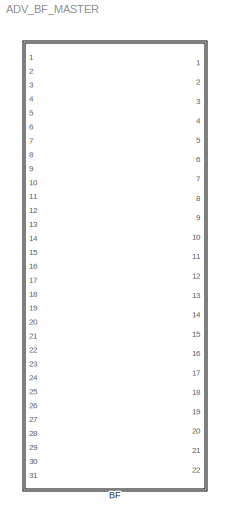
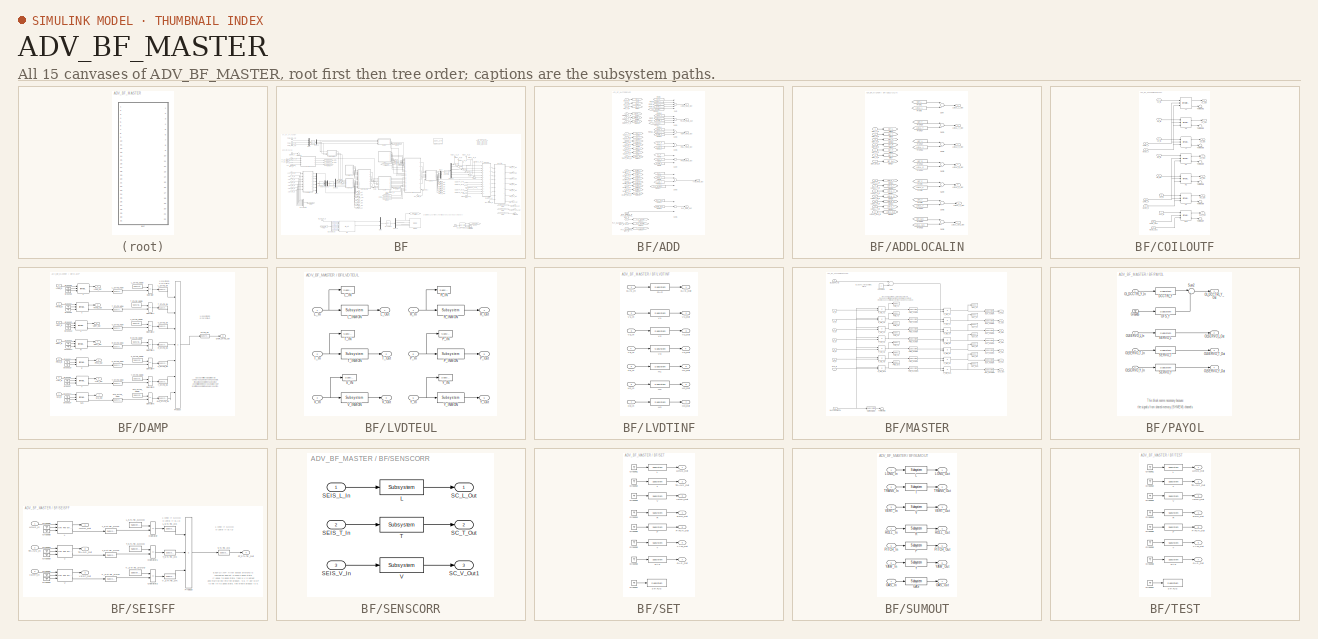
[diagram: thumbnail index - all 15 canvases of the model, root first then tree order]
MODEL ADV_BF_MASTER
KIND library
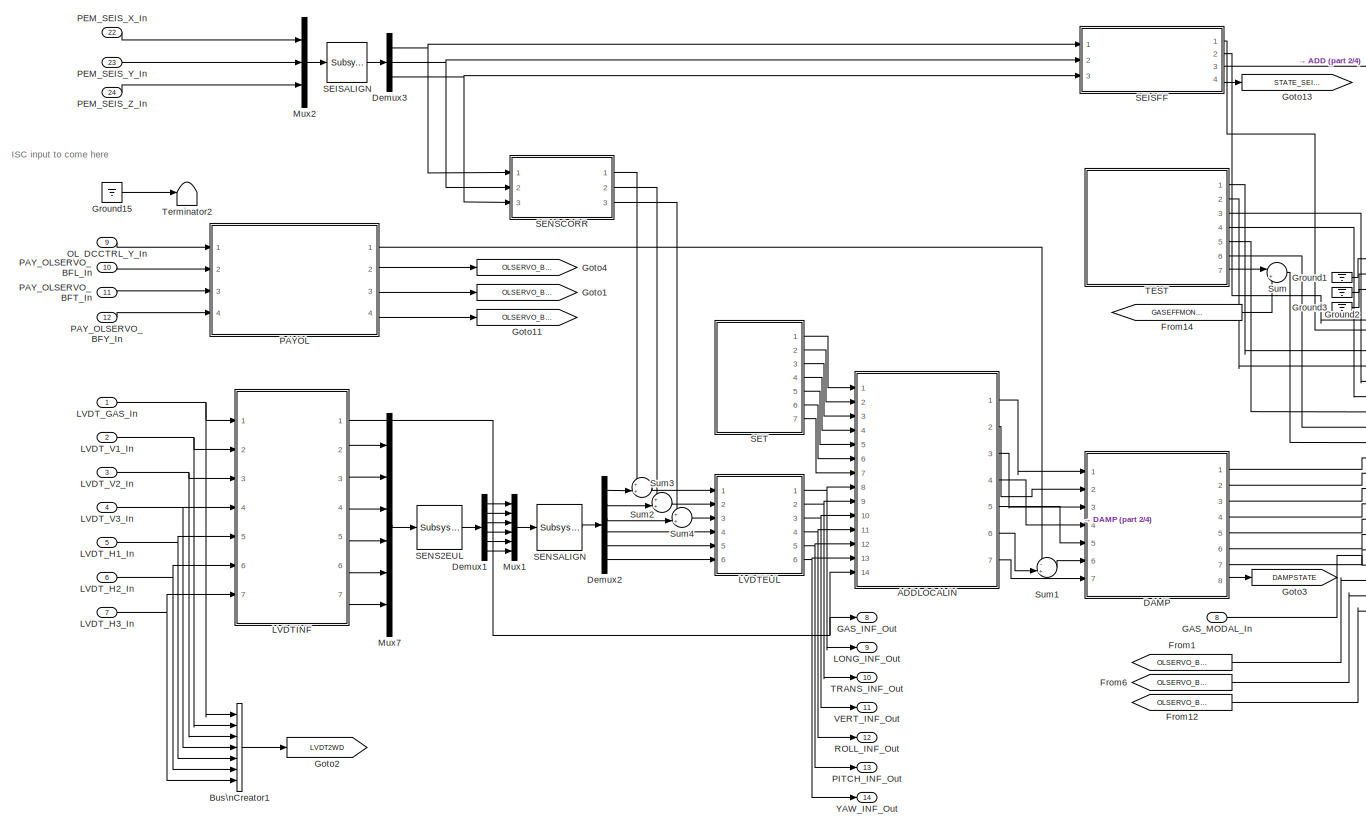
[diagram: BF - part 1/4, left side, full height]
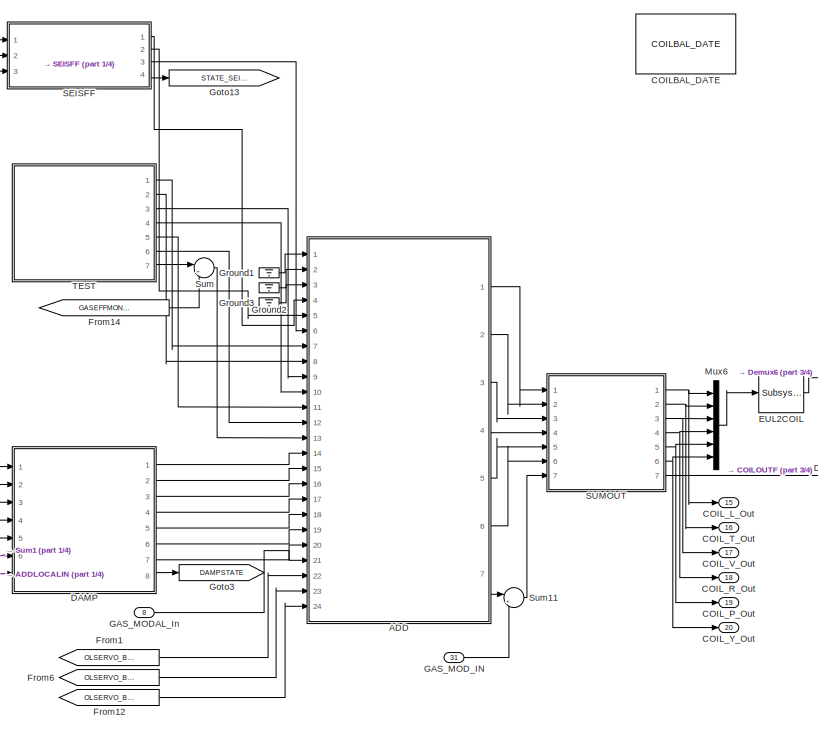
[diagram: BF - part 2/4, central region]
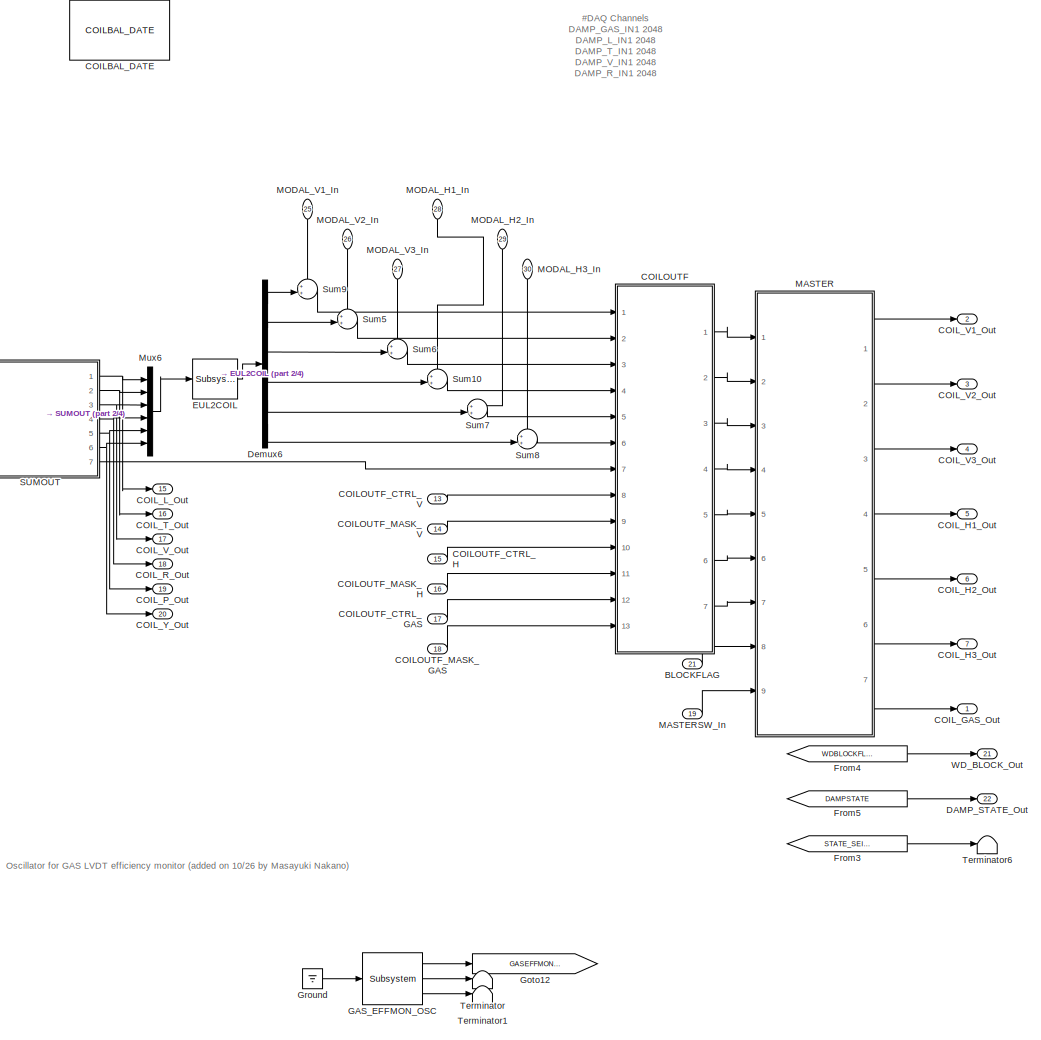
[diagram: BF - part 3/4, right side, full height]
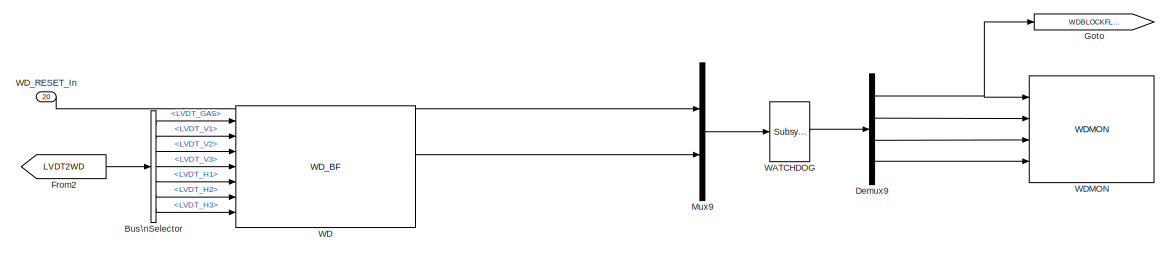
[diagram: BF - part 4/4, bottom center region]
BLOCK [SubSystem] BF
  Ports = [31, 22]
  RequestExecContextInheritance = off
  SID = 1
  Variant = off
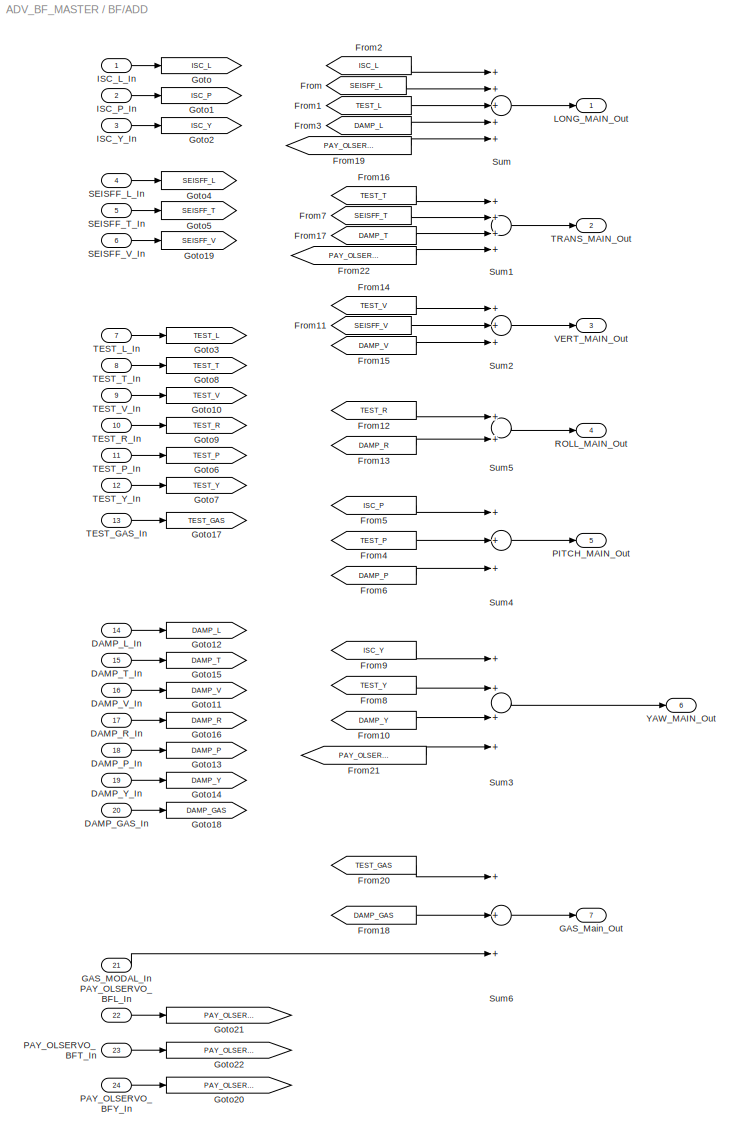
BLOCK [SubSystem] BF/ADD
  Ports = [24, 7]
  RequestExecContextInheritance = off
  SID = 21
  Variant = off
BLOCK [Inport] BF/ADD/DAMP_GAS_In
  IconDisplay = Port number
  Port = 20
  SID = 41
BLOCK [Inport] BF/ADD/DAMP_L_In
  IconDisplay = Port number
  Port = 14
  SID = 35
BLOCK [Inport] BF/ADD/DAMP_P_In
  IconDisplay = Port number
  Port = 18
  SID = 39
BLOCK [Inport] BF/ADD/DAMP_R_In
  IconDisplay = Port number
  Port = 17
  SID = 38
BLOCK [Inport] BF/ADD/DAMP_T_In
  IconDisplay = Port number
  Port = 15
  SID = 36
BLOCK [Inport] BF/ADD/DAMP_V_In
  IconDisplay = Port number
  Port = 16
  SID = 37
BLOCK [Inport] BF/ADD/DAMP_Y_In
  IconDisplay = Port number
  Port = 19
  SID = 40
BLOCK [From] BF/ADD/From
  GotoTag = SEISFF_L
  SID = 612
BLOCK [From] BF/ADD/From1
  CloseFcn = tagdialog Close
  GotoTag = TEST_L
  SID = 43
BLOCK [From] BF/ADD/From10
  CloseFcn = tagdialog Close
  GotoTag = DAMP_Y
  SID = 44
BLOCK [From] BF/ADD/From11
  GotoTag = SEISFF_V
  SID = 614
BLOCK [From] BF/ADD/From12
  CloseFcn = tagdialog Close
  GotoTag = TEST_R
  SID = 46
BLOCK [From] BF/ADD/From13
  CloseFcn = tagdialog Close
  GotoTag = DAMP_R
  SID = 47
BLOCK [From] BF/ADD/From14
  CloseFcn = tagdialog Close
  GotoTag = TEST_V
  SID = 48
BLOCK [From] BF/ADD/From15
  CloseFcn = tagdialog Close
  GotoTag = DAMP_V
  SID = 49
BLOCK [From] BF/ADD/From16
  CloseFcn = tagdialog Close
  GotoTag = TEST_T
  SID = 50
BLOCK [From] BF/ADD/From17
  CloseFcn = tagdialog Close
  GotoTag = DAMP_T
  SID = 51
BLOCK [From] BF/ADD/From18
  CloseFcn = tagdialog Close
  GotoTag = DAMP_GAS
  SID = 52
BLOCK [From] BF/ADD/From19
  CloseFcn = tagdialog Close
  GotoTag = PAY_OLSERVO_BFL
  SID = 755
BLOCK [From] BF/ADD/From2
  CloseFcn = tagdialog Close
  GotoTag = ISC_L
  SID = 54
BLOCK [From] BF/ADD/From20
  CloseFcn = tagdialog Close
  GotoTag = TEST_GAS
  SID = 55
BLOCK [From] BF/ADD/From21
  CloseFcn = tagdialog Close
  GotoTag = PAY_OLSERVO_BFY
  SID = 426
BLOCK [From] BF/ADD/From22
  CloseFcn = tagdialog Close
  GotoTag = PAY_OLSERVO_BFT
  SID = 756
BLOCK [From] BF/ADD/From3
  CloseFcn = tagdialog Close
  GotoTag = DAMP_L
  SID = 56
BLOCK [From] BF/ADD/From4
  CloseFcn = tagdialog Close
  GotoTag = TEST_P
  SID = 57
BLOCK [From] BF/ADD/From5
  CloseFcn = tagdialog Close
  GotoTag = ISC_P
  SID = 58
BLOCK [From] BF/ADD/From6
  CloseFcn = tagdialog Close
  GotoTag = DAMP_P
  SID = 59
BLOCK [From] BF/ADD/From7
  GotoTag = SEISFF_T
  SID = 613
BLOCK [From] BF/ADD/From8
  CloseFcn = tagdialog Close
  GotoTag = TEST_Y
  SID = 61
BLOCK [From] BF/ADD/From9
  CloseFcn = tagdialog Close
  GotoTag = ISC_Y
  SID = 62
BLOCK [Inport] BF/ADD/GAS_MODAL_In
  IconDisplay = Port number
  Port = 21
  SID = 42
BLOCK [Outport] BF/ADD/GAS_Main_Out
  IconDisplay = Port number
  Port = 7
  SID = 96
BLOCK [Goto] BF/ADD/Goto
  GotoTag = ISC_L
  SID = 63
BLOCK [Goto] BF/ADD/Goto1
  GotoTag = ISC_P
  SID = 64
BLOCK [Goto] BF/ADD/Goto10
  GotoTag = TEST_V
  SID = 65
BLOCK [Goto] BF/ADD/Goto11
  GotoTag = DAMP_V
  SID = 66
BLOCK [Goto] BF/ADD/Goto12
  GotoTag = DAMP_L
  SID = 67
BLOCK [Goto] BF/ADD/Goto13
  GotoTag = DAMP_P
  SID = 68
BLOCK [Goto] BF/ADD/Goto14
  GotoTag = DAMP_Y
  SID = 69
BLOCK [Goto] BF/ADD/Goto15
  GotoTag = DAMP_T
  SID = 70
BLOCK [Goto] BF/ADD/Goto16
  GotoTag = DAMP_R
  SID = 71
BLOCK [Goto] BF/ADD/Goto17
  GotoTag = TEST_GAS
  SID = 72
BLOCK [Goto] BF/ADD/Goto18
  GotoTag = DAMP_GAS
  SID = 73
BLOCK [Goto] BF/ADD/Goto19
  GotoTag = SEISFF_V
  SID = 74
BLOCK [Goto] BF/ADD/Goto2
  GotoTag = ISC_Y
  SID = 75
BLOCK [Goto] BF/ADD/Goto20
  GotoTag = PAY_OLSERVO_BFY
  SID = 425
BLOCK [Goto] BF/ADD/Goto21
  GotoTag = PAY_OLSERVO_BFL
  SID = 753
BLOCK [Goto] BF/ADD/Goto22
  GotoTag = PAY_OLSERVO_BFT
  SID = 754
BLOCK [Goto] BF/ADD/Goto3
  GotoTag = TEST_L
  SID = 76
BLOCK [Goto] BF/ADD/Goto4
  GotoTag = SEISFF_L
  SID = 77
BLOCK [Goto] BF/ADD/Goto5
  GotoTag = SEISFF_T
  SID = 78
BLOCK [Goto] BF/ADD/Goto6
  GotoTag = TEST_P
  SID = 79
BLOCK [Goto] BF/ADD/Goto7
  GotoTag = TEST_Y
  SID = 80
BLOCK [Goto] BF/ADD/Goto8
  GotoTag = TEST_T
  SID = 81
BLOCK [Goto] BF/ADD/Goto9
  GotoTag = TEST_R
  SID = 82
BLOCK [Inport] BF/ADD/ISC_L_In
  IconDisplay = Port number
  SID = 22
BLOCK [Inport] BF/ADD/ISC_P_In
  IconDisplay = Port number
  Port = 2
  SID = 23
BLOCK [Inport] BF/ADD/ISC_Y_In
  IconDisplay = Port number
  Port = 3
  SID = 24
BLOCK [Outport] BF/ADD/LONG_MAIN_Out
  IconDisplay = Port number
  SID = 90
BLOCK [Inport] BF/ADD/PAY_OLSERVO_BFL_In
  IconDisplay = Port number
  Port = 22
  SID = 751
BLOCK [Inport] BF/ADD/PAY_OLSERVO_BFT_In
  IconDisplay = Port number
  Port = 23
  SID = 752
BLOCK [Inport] BF/ADD/PAY_OLSERVO_BFY_In
  IconDisplay = Port number
  Port = 24
  SID = 423
BLOCK [Outport] BF/ADD/PITCH_MAIN_Out
  IconDisplay = Port number
  Port = 5
  SID = 94
BLOCK [Outport] BF/ADD/ROLL_MAIN_Out
  IconDisplay = Port number
  Port = 4
  SID = 93
BLOCK [Inport] BF/ADD/SEISFF_L_In
  IconDisplay = Port number
  Port = 4
  SID = 25
BLOCK [Inport] BF/ADD/SEISFF_T_In
  IconDisplay = Port number
  Port = 5
  SID = 26
BLOCK [Inport] BF/ADD/SEISFF_V_In
  IconDisplay = Port number
  Port = 6
  SID = 27
BLOCK [Sum] BF/ADD/Sum
  InputSameDT = off
  Inputs = +++++
  OutDataTypeStr = Inherit: Inherit via internal rule
  Ports = [5, 1]
  SID = 83
  SaturateOnIntegerOverflow = off
BLOCK [Sum] BF/ADD/Sum1
  InputSameDT = off
  Inputs = ++++
  OutDataTypeStr = Inherit: Inherit via internal rule
  Ports = [4, 1]
  SID = 84
  SaturateOnIntegerOverflow = off
BLOCK [Sum] BF/ADD/Sum2
  InputSameDT = off
  Inputs = +++
  OutDataTypeStr = Inherit: Inherit via internal rule
  Ports = [3, 1]
  SID = 85
  SaturateOnIntegerOverflow = off
BLOCK [Sum] BF/ADD/Sum3
  InputSameDT = off
  Inputs = ++++
  OutDataTypeStr = Inherit: Inherit via internal rule
  Ports = [4, 1]
  SID = 86
  SaturateOnIntegerOverflow = off
BLOCK [Sum] BF/ADD/Sum4
  InputSameDT = off
  Inputs = +++
  OutDataTypeStr = Inherit: Inherit via internal rule
  Ports = [3, 1]
  SID = 87
  SaturateOnIntegerOverflow = off
BLOCK [Sum] BF/ADD/Sum5
  InputSameDT = off
  OutDataTypeStr = Inherit: Inherit via internal rule
  Ports = [2, 1]
  SID = 88
  SaturateOnIntegerOverflow = off
BLOCK [Sum] BF/ADD/Sum6
  InputSameDT = off
  Inputs = +++
  OutDataTypeStr = Inherit: Inherit via internal rule
  Ports = [3, 1]
  SID = 89
  SaturateOnIntegerOverflow = off
BLOCK [Inport] BF/ADD/TEST_GAS_In
  IconDisplay = Port number
  Port = 13
  SID = 34
BLOCK [Inport] BF/ADD/TEST_L_In
  IconDisplay = Port number
  Port = 7
  SID = 28
BLOCK [Inport] BF/ADD/TEST_P_In
  IconDisplay = Port number
  Port = 11
  SID = 32
BLOCK [Inport] BF/ADD/TEST_R_In
  IconDisplay = Port number
  Port = 10
  SID = 31
BLOCK [Inport] BF/ADD/TEST_T_In
  IconDisplay = Port number
  Port = 8
  SID = 29
BLOCK [Inport] BF/ADD/TEST_V_In
  IconDisplay = Port number
  Port = 9
  SID = 30
BLOCK [Inport] BF/ADD/TEST_Y_In
  IconDisplay = Port number
  Port = 12
  SID = 33
BLOCK [Outport] BF/ADD/TRANS_MAIN_Out
  IconDisplay = Port number
  Port = 2
  SID = 91
BLOCK [Outport] BF/ADD/VERT_MAIN_Out
  IconDisplay = Port number
  Port = 3
  SID = 92
BLOCK [Outport] BF/ADD/YAW_MAIN_Out
  IconDisplay = Port number
  Port = 6
  SID = 95
BLOCK [SubSystem] BF/ADDLOCALIN
  Ports = [14, 7]
  RequestExecContextInheritance = off
  SID = 672
  Variant = off
BLOCK [From] BF/ADDLOCALIN/From1
  CloseFcn = tagdialog Close
  GotoTag = SET_L
  SID = 696
BLOCK [From] BF/ADDLOCALIN/From10
  CloseFcn = tagdialog Close
  GotoTag = LOCAL_Y
  SID = 697
BLOCK [From] BF/ADDLOCALIN/From12
  CloseFcn = tagdialog Close
  GotoTag = SET_R
  SID = 699
BLOCK [From] BF/ADDLOCALIN/From13
  CloseFcn = tagdialog Close
  GotoTag = LOCAL_R
  SID = 700
BLOCK [From] BF/ADDLOCALIN/From14
  CloseFcn = tagdialog Close
  GotoTag = SET_V
  SID = 701
BLOCK [From] BF/ADDLOCALIN/From15
  CloseFcn = tagdialog Close
  GotoTag = LOCAL_V
  SID = 702
BLOCK [From] BF/ADDLOCALIN/From16
  CloseFcn = tagdialog Close
  GotoTag = SET_T
  SID = 703
BLOCK [From] BF/ADDLOCALIN/From17
  CloseFcn = tagdialog Close
  GotoTag = LOCAL_T
  SID = 704
BLOCK [From] BF/ADDLOCALIN/From18
  CloseFcn = tagdialog Close
  GotoTag = LOCAL_GAS
  SID = 705
BLOCK [From] BF/ADDLOCALIN/From20
  CloseFcn = tagdialog Close
  GotoTag = SET_GAS
  SID = 707
BLOCK [From] BF/ADDLOCALIN/From3
  CloseFcn = tagdialog Close
  GotoTag = LOCAL_L
  SID = 709
BLOCK [From] BF/ADDLOCALIN/From4
  CloseFcn = tagdialog Close
  GotoTag = SET_P
  SID = 710
BLOCK [From] BF/ADDLOCALIN/From6
  CloseFcn = tagdialog Close
  GotoTag = LOCAL_P
  SID = 712
BLOCK [From] BF/ADDLOCALIN/From8
  CloseFcn = tagdialog Close
  GotoTag = SET_Y
  SID = 714
BLOCK [Goto] BF/ADDLOCALIN/Goto10
  GotoTag = SET_V
  SID = 718
BLOCK [Goto] BF/ADDLOCALIN/Goto11
  GotoTag = LOCAL_V
  SID = 719
BLOCK [Goto] BF/ADDLOCALIN/Goto12
  GotoTag = LOCAL_L
  SID = 720
BLOCK [Goto] BF/ADDLOCALIN/Goto13
  GotoTag = LOCAL_P
  SID = 721
BLOCK [Goto] BF/ADDLOCALIN/Goto14
  GotoTag = LOCAL_Y
  SID = 722
BLOCK [Goto] BF/ADDLOCALIN/Goto15
  GotoTag = LOCAL_T
  SID = 723
BLOCK [Goto] BF/ADDLOCALIN/Goto16
  GotoTag = LOCAL_R
  SID = 724
BLOCK [Goto] BF/ADDLOCALIN/Goto17
  GotoTag = SET_GAS
  SID = 725
BLOCK [Goto] BF/ADDLOCALIN/Goto18
  GotoTag = LOCAL_GAS
  SID = 726
BLOCK [Goto] BF/ADDLOCALIN/Goto3
  GotoTag = SET_L
  SID = 730
BLOCK [Goto] BF/ADDLOCALIN/Goto6
  GotoTag = SET_P
  SID = 733
BLOCK [Goto] BF/ADDLOCALIN/Goto7
  GotoTag = SET_Y
  SID = 734
BLOCK [Goto] BF/ADDLOCALIN/Goto8
  GotoTag = SET_T
  SID = 735
BLOCK [Goto] BF/ADDLOCALIN/Goto9
  GotoTag = SET_R
  SID = 736
BLOCK [Inport] BF/ADDLOCALIN/LOCAL_GAS_In
  IconDisplay = Port number
  Port = 14
  SID = 692
BLOCK [Outport] BF/ADDLOCALIN/LOCAL_GAS_Out
  IconDisplay = Port number
  Port = 7
  SID = 750
BLOCK [Inport] BF/ADDLOCALIN/LOCAL_L_In
  IconDisplay = Port number
  Port = 8
  SID = 686
BLOCK [Outport] BF/ADDLOCALIN/LOCAL_L_Out
  IconDisplay = Port number
  SID = 744
BLOCK [Inport] BF/ADDLOCALIN/LOCAL_P_In
  IconDisplay = Port number
  Port = 12
  SID = 690
BLOCK [Outport] BF/ADDLOCALIN/LOCAL_P_Out
  IconDisplay = Port number
  Port = 5
  SID = 748
BLOCK [Inport] BF/ADDLOCALIN/LOCAL_R_In
  IconDisplay = Port number
  Port = 11
  SID = 689
BLOCK [Outport] BF/ADDLOCALIN/LOCAL_R_Out
  IconDisplay = Port number
  Port = 4
  SID = 747
BLOCK [Inport] BF/ADDLOCALIN/LOCAL_T_In
  IconDisplay = Port number
  Port = 9
  SID = 687
BLOCK [Outport] BF/ADDLOCALIN/LOCAL_T_Out
  IconDisplay = Port number
  Port = 2
  SID = 745
BLOCK [Inport] BF/ADDLOCALIN/LOCAL_V_In
  IconDisplay = Port number
  Port = 10
  SID = 688
BLOCK [Outport] BF/ADDLOCALIN/LOCAL_V_Out
  IconDisplay = Port number
  Port = 3
  SID = 746
BLOCK [Inport] BF/ADDLOCALIN/LOCAL_Y_In
  IconDisplay = Port number
  Port = 13
  SID = 691
BLOCK [Outport] BF/ADDLOCALIN/LOCAL_Y_Out
  IconDisplay = Port number
  Port = 6
  SID = 749
BLOCK [Inport] BF/ADDLOCALIN/SET_GAS_In
  IconDisplay = Port number
  Port = 7
  SID = 685
BLOCK [Inport] BF/ADDLOCALIN/SET_L_In
  IconDisplay = Port number
  SID = 679
BLOCK [Inport] BF/ADDLOCALIN/SET_P_In
  IconDisplay = Port number
  Port = 5
  SID = 683
BLOCK [Inport] BF/ADDLOCALIN/SET_R_In
  IconDisplay = Port number
  Port = 4
  SID = 682
BLOCK [Inport] BF/ADDLOCALIN/SET_T_In
  IconDisplay = Port number
  Port = 2
  SID = 680
BLOCK [Inport] BF/ADDLOCALIN/SET_V_In
  IconDisplay = Port number
  Port = 3
  SID = 681
BLOCK [Inport] BF/ADDLOCALIN/SET_Y_In
  IconDisplay = Port number
  Port = 6
  SID = 684
BLOCK [Sum] BF/ADDLOCALIN/Sum
  InputSameDT = off
  Inputs = -+
  OutDataTypeStr = Inherit: Inherit via internal rule
  Ports = [2, 1]
  SID = 737
  SaturateOnIntegerOverflow = off
BLOCK [Sum] BF/ADDLOCALIN/Sum1
  InputSameDT = off
  Inputs = -+
  OutDataTypeStr = Inherit: Inherit via internal rule
  Ports = [2, 1]
  SID = 738
  SaturateOnIntegerOverflow = off
BLOCK [Sum] BF/ADDLOCALIN/Sum2
  InputSameDT = off
  Inputs = -+
  OutDataTypeStr = Inherit: Inherit via internal rule
  Ports = [2, 1]
  SID = 739
  SaturateOnIntegerOverflow = off
BLOCK [Sum] BF/ADDLOCALIN/Sum3
  InputSameDT = off
  Inputs = -+
  OutDataTypeStr = Inherit: Inherit via internal rule
  Ports = [2, 1]
  SID = 740
  SaturateOnIntegerOverflow = off
BLOCK [Sum] BF/ADDLOCALIN/Sum4
  InputSameDT = off
  Inputs = -+
  OutDataTypeStr = Inherit: Inherit via internal rule
  Ports = [2, 1]
  SID = 741
  SaturateOnIntegerOverflow = off
BLOCK [Sum] BF/ADDLOCALIN/Sum5
  InputSameDT = off
  Inputs = -+
  OutDataTypeStr = Inherit: Inherit via internal rule
  Ports = [2, 1]
  SID = 742
  SaturateOnIntegerOverflow = off
BLOCK [Sum] BF/ADDLOCALIN/Sum6
  InputSameDT = off
  Inputs = -+
  OutDataTypeStr = Inherit: Inherit via internal rule
  Ports = [2, 1]
  SID = 743
  SaturateOnIntegerOverflow = off
BLOCK [Inport] BF/BLOCKFLAG
  IconDisplay = Port number
  Port = 21
  SID = 420
BLOCK [BusCreator] BF/Bus\nCreator1
  DisplayOption = bar
  InheritFromInputs = on
  Inputs = 'LVDT_GAS','LVDT_V1','LVDT_V2','LVDT_V3','LVDT_H1','LVDT_H2','LVDT_H3'
  Ports = [7, 1]
  SID = 97
BLOCK [BusSelector] BF/Bus\nSelector
  OutputSignals = LVDT_GAS,LVDT_V1,LVDT_V2,LVDT_V3,LVDT_H1,LVDT_H2,LVDT_H3
  Ports = [1, 7]
  SID = 98
BLOCK [Reference] BF/COILBAL_DATE  REF=VIS_LIB/COILBAL_DATE
  Ports = []
  SID = 816
  SourceBlock = VIS_LIB/COILBAL_DATE
  SourceType = SubSystem
BLOCK [SubSystem] BF/COILOUTF
  Ports = [13, 7]
  RequestExecContextInheritance = off
  SID = 99
  Variant = off
BLOCK [Inport] BF/COILOUTF/CTRL_GAS
  IconDisplay = Port number
  Port = 12
  SID = 111
BLOCK [Inport] BF/COILOUTF/CTRL_H
  IconDisplay = Port number
  Port = 10
  SID = 109
BLOCK [Inport] BF/COILOUTF/CTRL_V
  IconDisplay = Port number
  Port = 8
  SID = 107
BLOCK [Reference] BF/COILOUTF/GAS  REF=cdsFiltCtrl/IIR FM with control
  AttributesFormatString = %<Tag>
  Description = cdsFiltCntrl is the standard IIR filter module (exactly the same as cdsFilt) but with added control data output 'Ctrl'. Filter module digital signal output appears on the first output, which is called 'Val'. 'Ctrl' output has a bit pattern encoding the state of filter's on/off switches (FM1 through FM10). The bit values are:\n                                                                        ...<+4621ch>  <repeated x17 — deduplicated; at blocks: GAS, H1, H2, H3, V1, V2, V3, L, P, R, T, V, Y>
  Ports = [3, 2]
  SID = 113
  SourceBlock = cdsFiltCtrl/IIR FM with control
  SourceType = SubSystem
  Tag = cdsFiltCtrl
BLOCK [Inport] BF/COILOUTF/GAS_IN
  IconDisplay = Port number
  Port = 7
  SID = 106
BLOCK [Outport] BF/COILOUTF/GAS_Out
  IconDisplay = Port number
  Port = 7
  SID = 133
BLOCK [Reference] BF/COILOUTF/H1  REF=cdsFiltCtrl/IIR FM with control
  AttributesFormatString = %<Tag>
  Ports = [3, 2]
  SID = 114
  SourceBlock = cdsFiltCtrl/IIR FM with control
  SourceType = SubSystem
  Tag = cdsFiltCtrl
BLOCK [Inport] BF/COILOUTF/H1_IN
  IconDisplay = Port number
  Port = 4
  SID = 103
BLOCK [Outport] BF/COILOUTF/H1_Out
  IconDisplay = Port number
  Port = 4
  SID = 130
BLOCK [Reference] BF/COILOUTF/H2  REF=cdsFiltCtrl/IIR FM with control
  AttributesFormatString = %<Tag>
  Ports = [3, 2]
  SID = 115
  SourceBlock = cdsFiltCtrl/IIR FM with control
  SourceType = SubSystem
  Tag = cdsFiltCtrl
BLOCK [Inport] BF/COILOUTF/H2_IN1
  IconDisplay = Port number
  Port = 5
  SID = 104
BLOCK [Outport] BF/COILOUTF/H2_Out
  IconDisplay = Port number
  Port = 5
  SID = 131
BLOCK [Reference] BF/COILOUTF/H3  REF=cdsFiltCtrl/IIR FM with control
  AttributesFormatString = %<Tag>
  Ports = [3, 2]
  SID = 116
  SourceBlock = cdsFiltCtrl/IIR FM with control
  SourceType = SubSystem
  Tag = cdsFiltCtrl
BLOCK [Inport] BF/COILOUTF/H3_IN
  IconDisplay = Port number
  Port = 6
  SID = 105
BLOCK [Outport] BF/COILOUTF/H3_Out
  IconDisplay = Port number
  Port = 6
  SID = 132
BLOCK [Inport] BF/COILOUTF/MASK_GAS
  IconDisplay = Port number
  Port = 13
  SID = 112
BLOCK [Inport] BF/COILOUTF/MASK_H
  IconDisplay = Port number
  Port = 11
  SID = 110
BLOCK [Inport] BF/COILOUTF/MASK_V
  IconDisplay = Port number
  Port = 9
  SID = 108
BLOCK [Terminator] BF/COILOUTF/Terminator1
  SID = 117
BLOCK [Terminator] BF/COILOUTF/Terminator2
  SID = 118
BLOCK [Terminator] BF/COILOUTF/Terminator3
  SID = 119
BLOCK [Terminator] BF/COILOUTF/Terminator4
  SID = 120
BLOCK [Terminator] BF/COILOUTF/Terminator5
  SID = 121
BLOCK [Terminator] BF/COILOUTF/Terminator6
  SID = 122
BLOCK [Terminator] BF/COILOUTF/Terminator7
  SID = 123
BLOCK [Reference] BF/COILOUTF/V1  REF=cdsFiltCtrl/IIR FM with control
  AttributesFormatString = %<Tag>
  Ports = [3, 2]
  SID = 124
  SourceBlock = cdsFiltCtrl/IIR FM with control
  SourceType = SubSystem
  Tag = cdsFiltCtrl
BLOCK [Inport] BF/COILOUTF/V1_IN
  IconDisplay = Port number
  SID = 100
BLOCK [Outport] BF/COILOUTF/V1_Out
  IconDisplay = Port number
  SID = 127
BLOCK [Reference] BF/COILOUTF/V2  REF=cdsFiltCtrl/IIR FM with control
  AttributesFormatString = %<Tag>
  Ports = [3, 2]
  SID = 125
  SourceBlock = cdsFiltCtrl/IIR FM with control
  SourceType = SubSystem
  Tag = cdsFiltCtrl
BLOCK [Inport] BF/COILOUTF/V2_IN
  IconDisplay = Port number
  Port = 2
  SID = 101
BLOCK [Outport] BF/COILOUTF/V2_Out
  IconDisplay = Port number
  Port = 2
  SID = 128
BLOCK [Reference] BF/COILOUTF/V3  REF=cdsFiltCtrl/IIR FM with control
  AttributesFormatString = %<Tag>
  Ports = [3, 2]
  SID = 126
  SourceBlock = cdsFiltCtrl/IIR FM with control
  SourceType = SubSystem
  Tag = cdsFiltCtrl
BLOCK [Inport] BF/COILOUTF/V3_IN
  IconDisplay = Port number
  Port = 3
  SID = 102
BLOCK [Outport] BF/COILOUTF/V3_Out
  IconDisplay = Port number
  Port = 3
  SID = 129
BLOCK [Inport] BF/COILOUTF_CTRL_GAS
  IconDisplay = Port number
  Port = 17
  SID = 14
BLOCK [Inport] BF/COILOUTF_CTRL_H
  IconDisplay = Port number
  Port = 15
  SID = 12
BLOCK [Inport] BF/COILOUTF_CTRL_V
  IconDisplay = Port number
  Port = 13
  SID = 10
BLOCK [Inport] BF/COILOUTF_MASK_GAS
  IconDisplay = Port number
  Port = 18
  SID = 15
BLOCK [Inport] BF/COILOUTF_MASK_H
  IconDisplay = Port number
  Port = 16
  SID = 13
BLOCK [Inport] BF/COILOUTF_MASK_V
  IconDisplay = Port number
  Port = 14
  SID = 11
BLOCK [Outport] BF/COIL_GAS_Out
  IconDisplay = Port number
  SID = 376
BLOCK [Outport] BF/COIL_H1_Out
  IconDisplay = Port number
  Port = 5
  SID = 380
BLOCK [Outport] BF/COIL_H2_Out
  IconDisplay = Port number
  Port = 6
  SID = 381
BLOCK [Outport] BF/COIL_H3_Out
  IconDisplay = Port number
  Port = 7
  SID = 382
BLOCK [Outport] BF/COIL_L_Out
  IconDisplay = Port number
  Port = 15
  SID = 396
BLOCK [Outport] BF/COIL_P_Out
  IconDisplay = Port number
  Port = 19
  SID = 400
BLOCK [Outport] BF/COIL_R_Out
  IconDisplay = Port number
  Port = 18
  SID = 399
BLOCK [Outport] BF/COIL_T_Out
  IconDisplay = Port number
  Port = 16
  SID = 397
BLOCK [Outport] BF/COIL_V1_Out
  IconDisplay = Port number
  Port = 2
  SID = 377
BLOCK [Outport] BF/COIL_V2_Out
  IconDisplay = Port number
  Port = 3
  SID = 378
BLOCK [Outport] BF/COIL_V3_Out
  IconDisplay = Port number
  Port = 4
  SID = 379
BLOCK [Outport] BF/COIL_V_Out
  IconDisplay = Port number
  Port = 17
  SID = 398
BLOCK [Outport] BF/COIL_Y_Out
  IconDisplay = Port number
  Port = 20
  SID = 401
BLOCK [SubSystem] BF/DAMP
  Ports = [7, 8]
  RequestExecContextInheritance = off
  SID = 134
  Variant = off
BLOCK [Outport] BF/DAMP/DAMP_STATE_Out
  IconDisplay = Port number
  Port = 8
  SID = 200
BLOCK [Reference] BF/DAMP/GAS  REF=cdsFiltCtrl/IIR FM with control
  AttributesFormatString = %<Tag>
  Ports = [3, 2]
  SID = 142
  SourceBlock = cdsFiltCtrl/IIR FM with control
  SourceType = SubSystem
  Tag = cdsFiltCtrl
BLOCK [Inport] BF/DAMP/GAS_In
  IconDisplay = Port number
  Port = 7
  SID = 141
BLOCK [Outport] BF/DAMP/GAS_Out
  IconDisplay = Port number
  Port = 7
  SID = 199
BLOCK [Reference] BF/DAMP/GAS_STATE_GOOD  REF=cdsEpicsIn/Subsystem
  AttributesFormatString = %<Tag>
  Description = Purpose:                                                                              \nCreate an EPICS input channel connection to the FE realtime controls.                 \n                                                                                      \nOperation:                                                                            \nOutputs value from an EPICS ai record. Value is ...<+266ch>  <repeated x10 — deduplicated; at blocks: GAS_STATE_GOOD, L_STATE_GOOD, P_STATE_GOOD, R_STATE_GOOD, T_STATE_GOOD, V_STATE_GOOD, Y_STATE_GOOD>
  Ports = [0, 1]
  SID = 143
  SourceBlock = cdsEpicsIn/Subsystem
  SourceType = SubSystem
  Tag = cdsEpicsIn
BLOCK [Reference] BF/DAMP/GAS_STATE_NOW  REF=cdsEpicsOut/Subsystem
  AttributesFormatString = %<Tag>
  Description = Purpose:                                          \nOutput a FE signal to an EPICS channel.           \n                                                  \nOperation:                                        \nTakes input value and passes it to EPICS record.  \n                                                  \nUsage:                                            \nName the part with the desired EPICS...<+14ch>  <repeated x43 — deduplicated; at blocks: GAS_STATE_NOW, GAS_STATE_OK, L_STATE_NOW, L_STATE_OK, P_STATE_NOW, P_STATE_OK, R_STATE_NOW, R_STATE_OK, STATE_OK, T_STATE_NOW, T_STATE_OK, V_STATE_NOW, V_STATE_OK, Y_STATE_NOW, Y_STATE_OK, L_INMON, +20 more>
  Ports = [1, 1]
  SID = 144
  SourceBlock = cdsEpicsOut/Subsystem
  SourceType = SubSystem
  Tag = cdsEpicsOutput
BLOCK [Reference] BF/DAMP/GAS_STATE_OK  REF=cdsEpicsOut/Subsystem
  AttributesFormatString = %<Tag>
  Ports = [1, 1]
  SID = 145
  SourceBlock = cdsEpicsOut/Subsystem
  SourceType = SubSystem
  Tag = cdsEpicsOutput
BLOCK [Ground] BF/DAMP/Ground1
  SID = 146
BLOCK [Ground] BF/DAMP/Ground10
  SID = 147
BLOCK [Ground] BF/DAMP/Ground11
  SID = 148
BLOCK [Ground] BF/DAMP/Ground12
  SID = 149
BLOCK [Ground] BF/DAMP/Ground13
  SID = 150
BLOCK [Ground] BF/DAMP/Ground14
  SID = 151
BLOCK [Ground] BF/DAMP/Ground2
  SID = 152
BLOCK [Ground] BF/DAMP/Ground3
  SID = 153
BLOCK [Ground] BF/DAMP/Ground4
  SID = 154
BLOCK [Ground] BF/DAMP/Ground5
  SID = 155
BLOCK [Ground] BF/DAMP/Ground6
  SID = 156
BLOCK [Ground] BF/DAMP/Ground7
  SID = 157
BLOCK [Ground] BF/DAMP/Ground8
  SID = 158
BLOCK [Ground] BF/DAMP/Ground9
  SID = 159
BLOCK [Reference] BF/DAMP/L  REF=cdsFiltCtrl/IIR FM with control
  AttributesFormatString = %<Tag>
  Ports = [3, 2]
  SID = 160
  SourceBlock = cdsFiltCtrl/IIR FM with control
  SourceType = SubSystem
  Tag = cdsFiltCtrl
BLOCK [Inport] BF/DAMP/LONG_In
  IconDisplay = Port number
  SID = 135
BLOCK [Outport] BF/DAMP/LONG_Out
  IconDisplay = Port number
  SID = 193
BLOCK [Reference] BF/DAMP/L_STATE_GOOD  REF=cdsEpicsIn/Subsystem
  AttributesFormatString = %<Tag>
  Ports = [0, 1]
  SID = 161
  SourceBlock = cdsEpicsIn/Subsystem
  SourceType = SubSystem
  Tag = cdsEpicsIn
BLOCK [Reference] BF/DAMP/L_STATE_NOW  REF=cdsEpicsOut/Subsystem
  AttributesFormatString = %<Tag>
  Ports = [1, 1]
  SID = 162
  SourceBlock = cdsEpicsOut/Subsystem
  SourceType = SubSystem
  Tag = cdsEpicsOutput
BLOCK [Reference] BF/DAMP/L_STATE_OK  REF=cdsEpicsOut/Subsystem
  AttributesFormatString = %<Tag>
  Ports = [1, 1]
  SID = 163
  SourceBlock = cdsEpicsOut/Subsystem
  SourceType = SubSystem
  Tag = cdsEpicsOutput
BLOCK [RelationalOperator] BF/DAMP/Operator
  InputSameDT = off
  Operator = ==
  OutDataTypeStr = boolean
  Ports = [2, 1]
  SID = 164
BLOCK [RelationalOperator] BF/DAMP/Operator1
  InputSameDT = off
  Operator = ==
  OutDataTypeStr = boolean
  Ports = [2, 1]
  SID = 165
BLOCK [RelationalOperator] BF/DAMP/Operator2
  InputSameDT = off
  Operator = ==
  OutDataTypeStr = boolean
  Ports = [2, 1]
  SID = 166
BLOCK [RelationalOperator] BF/DAMP/Operator3
  InputSameDT = off
  Operator = ==
  OutDataTypeStr = boolean
  Ports = [2, 1]
  SID = 167
BLOCK [RelationalOperator] BF/DAMP/Operator4
  InputSameDT = off
  Operator = ==
  OutDataTypeStr = boolean
  Ports = [2, 1]
  SID = 168
BLOCK [RelationalOperator] BF/DAMP/Operator5
  InputSameDT = off
  Operator = ==
  OutDataTypeStr = boolean
  Ports = [2, 1]
  SID = 169
BLOCK [RelationalOperator] BF/DAMP/Operator6
  InputSameDT = off
  Operator = ==
  OutDataTypeStr = boolean
  Ports = [2, 1]
  SID = 170
BLOCK [Reference] BF/DAMP/P  REF=cdsFiltCtrl/IIR FM with control
  AttributesFormatString = %<Tag>
  Ports = [3, 2]
  SID = 171
  SourceBlock = cdsFiltCtrl/IIR FM with control
  SourceType = SubSystem
  Tag = cdsFiltCtrl
BLOCK [Inport] BF/DAMP/PITCH_In
  IconDisplay = Port number
  Port = 5
  SID = 139
BLOCK [Outport] BF/DAMP/PITCH_Out
  IconDisplay = Port number
  Port = 5
  SID = 197
BLOCK [Reference] BF/DAMP/P_STATE_GOOD  REF=cdsEpicsIn/Subsystem
  AttributesFormatString = %<Tag>
  Ports = [0, 1]
  SID = 172
  SourceBlock = cdsEpicsIn/Subsystem
  SourceType = SubSystem
  Tag = cdsEpicsIn
BLOCK [Reference] BF/DAMP/P_STATE_NOW  REF=cdsEpicsOut/Subsystem
  AttributesFormatString = %<Tag>
  Ports = [1, 1]
  SID = 173
  SourceBlock = cdsEpicsOut/Subsystem
  SourceType = SubSystem
  Tag = cdsEpicsOutput
BLOCK [Reference] BF/DAMP/P_STATE_OK  REF=cdsEpicsOut/Subsystem
  AttributesFormatString = %<Tag>
  Ports = [1, 1]
  SID = 174
  SourceBlock = cdsEpicsOut/Subsystem
  SourceType = SubSystem
  Tag = cdsEpicsOutput
BLOCK [Product] BF/DAMP/Product
  InputSameDT = off
  Inputs = 7
  OutDataTypeStr = Inherit: Inherit via internal rule
  Ports = [7, 1]
  SID = 175
  SaturateOnIntegerOverflow = off
BLOCK [Reference] BF/DAMP/R  REF=cdsFiltCtrl/IIR FM with control
  AttributesFormatString = %<Tag>
  Ports = [3, 2]
  SID = 176
  SourceBlock = cdsFiltCtrl/IIR FM with control
  SourceType = SubSystem
  Tag = cdsFiltCtrl
BLOCK [Inport] BF/DAMP/ROLL_In
  IconDisplay = Port number
  Port = 4
  SID = 138
BLOCK [Outport] BF/DAMP/ROLL_Out
  IconDisplay = Port number
  Port = 4
  SID = 196
BLOCK [Reference] BF/DAMP/R_STATE_GOOD  REF=cdsEpicsIn/Subsystem
  AttributesFormatString = %<Tag>
  Ports = [0, 1]
  SID = 177
  SourceBlock = cdsEpicsIn/Subsystem
  SourceType = SubSystem
  Tag = cdsEpicsIn
BLOCK [Reference] BF/DAMP/R_STATE_NOW  REF=cdsEpicsOut/Subsystem
  AttributesFormatString = %<Tag>
  Ports = [1, 1]
  SID = 178
  SourceBlock = cdsEpicsOut/Subsystem
  SourceType = SubSystem
  Tag = cdsEpicsOutput
BLOCK [Reference] BF/DAMP/R_STATE_OK  REF=cdsEpicsOut/Subsystem
  AttributesFormatString = %<Tag>
  Ports = [1, 1]
  SID = 179
  SourceBlock = cdsEpicsOut/Subsystem
  SourceType = SubSystem
  Tag = cdsEpicsOutput
BLOCK [Reference] BF/DAMP/STATE_OK  REF=cdsEpicsOut/Subsystem
  AttributesFormatString = %<Tag>
  Ports = [1, 1]
  SID = 180
  SourceBlock = cdsEpicsOut/Subsystem
  SourceType = SubSystem
  Tag = cdsEpicsOutput
BLOCK [Reference] BF/DAMP/T  REF=cdsFiltCtrl/IIR FM with control
  AttributesFormatString = %<Tag>
  Ports = [3, 2]
  SID = 181
  SourceBlock = cdsFiltCtrl/IIR FM with control
  SourceType = SubSystem
  Tag = cdsFiltCtrl
BLOCK [Inport] BF/DAMP/TRANS_In
  IconDisplay = Port number
  Port = 2
  SID = 136
BLOCK [Outport] BF/DAMP/TRANS_Out
  IconDisplay = Port number
  Port = 2
  SID = 194
BLOCK [Reference] BF/DAMP/T_STATE_GOOD  REF=cdsEpicsIn/Subsystem
  AttributesFormatString = %<Tag>
  Ports = [0, 1]
  SID = 182
  SourceBlock = cdsEpicsIn/Subsystem
  SourceType = SubSystem
  Tag = cdsEpicsIn
BLOCK [Reference] BF/DAMP/T_STATE_NOW  REF=cdsEpicsOut/Subsystem
  AttributesFormatString = %<Tag>
  Ports = [1, 1]
  SID = 183
  SourceBlock = cdsEpicsOut/Subsystem
  SourceType = SubSystem
  Tag = cdsEpicsOutput
BLOCK [Reference] BF/DAMP/T_STATE_OK  REF=cdsEpicsOut/Subsystem
  AttributesFormatString = %<Tag>
  Ports = [1, 1]
  SID = 184
  SourceBlock = cdsEpicsOut/Subsystem
  SourceType = SubSystem
  Tag = cdsEpicsOutput
BLOCK [Reference] BF/DAMP/V  REF=cdsFiltCtrl/IIR FM with control
  AttributesFormatString = %<Tag>
  Ports = [3, 2]
  SID = 185
  SourceBlock = cdsFiltCtrl/IIR FM with control
  SourceType = SubSystem
  Tag = cdsFiltCtrl
BLOCK [Inport] BF/DAMP/VERT_In
  IconDisplay = Port number
  Port = 3
  SID = 137
BLOCK [Outport] BF/DAMP/VERT_Out
  IconDisplay = Port number
  Port = 3
  SID = 195
BLOCK [Reference] BF/DAMP/V_STATE_GOOD  REF=cdsEpicsIn/Subsystem
  AttributesFormatString = %<Tag>
  Ports = [0, 1]
  SID = 186
  SourceBlock = cdsEpicsIn/Subsystem
  SourceType = SubSystem
  Tag = cdsEpicsIn
BLOCK [Reference] BF/DAMP/V_STATE_NOW  REF=cdsEpicsOut/Subsystem
  AttributesFormatString = %<Tag>
  Ports = [1, 1]
  SID = 187
  SourceBlock = cdsEpicsOut/Subsystem
  SourceType = SubSystem
  Tag = cdsEpicsOutput
BLOCK [Reference] BF/DAMP/V_STATE_OK  REF=cdsEpicsOut/Subsystem
  AttributesFormatString = %<Tag>
  Ports = [1, 1]
  SID = 188
  SourceBlock = cdsEpicsOut/Subsystem
  SourceType = SubSystem
  Tag = cdsEpicsOutput
BLOCK [Reference] BF/DAMP/Y  REF=cdsFiltCtrl/IIR FM with control
  AttributesFormatString = %<Tag>
  Ports = [3, 2]
  SID = 189
  SourceBlock = cdsFiltCtrl/IIR FM with control
  SourceType = SubSystem
  Tag = cdsFiltCtrl
BLOCK [Inport] BF/DAMP/YAW_In
  IconDisplay = Port number
  Port = 6
  SID = 140
BLOCK [Outport] BF/DAMP/YAW_Out
  IconDisplay = Port number
  Port = 6
  SID = 198
BLOCK [Reference] BF/DAMP/Y_STATE_GOOD  REF=cdsEpicsIn/Subsystem
  AttributesFormatString = %<Tag>
  Ports = [0, 1]
  SID = 190
  SourceBlock = cdsEpicsIn/Subsystem
  SourceType = SubSystem
  Tag = cdsEpicsIn
BLOCK [Reference] BF/DAMP/Y_STATE_NOW  REF=cdsEpicsOut/Subsystem
  AttributesFormatString = %<Tag>
  Ports = [1, 1]
  SID = 191
  SourceBlock = cdsEpicsOut/Subsystem
  SourceType = SubSystem
  Tag = cdsEpicsOutput
BLOCK [Reference] BF/DAMP/Y_STATE_OK  REF=cdsEpicsOut/Subsystem
  AttributesFormatString = %<Tag>
  Ports = [1, 1]
  SID = 192
  SourceBlock = cdsEpicsOut/Subsystem
  SourceType = SubSystem
  Tag = cdsEpicsOutput
BLOCK [Outport] BF/DAMP_STATE_Out
  IconDisplay = Port number
  Port = 22
  SID = 386
BLOCK [Demux] BF/Demux1
  DisplayOption = bar
  Outputs = 6
  Ports = [1, 6]
  SID = 206
BLOCK [Demux] BF/Demux2
  DisplayOption = bar
  Outputs = 6
  Ports = [1, 6]
  SID = 207
BLOCK [Demux] BF/Demux3
  DisplayOption = bar
  Outputs = 3
  Ports = [1, 3]
  SID = 551
BLOCK [Demux] BF/Demux6
  DisplayOption = bar
  Outputs = 6
  Ports = [1, 6]
  SID = 208
BLOCK [Demux] BF/Demux9
  DisplayOption = bar
  Ports = [1, 4]
  SID = 209
BLOCK [Reference] BF/EUL2COIL  REF=cdsMuxMatrix/Subsystem
  AttributesFormatString = %<Tag>
  Description = ADL=SUS_INMATRIX.adl\nSCRIPT=generate_KisselButton.py 4 5 #CHANNEL# > #TARGET_DIR#/#FULL_PART_NAME#_KB.adl
  Ports = [1, 1]
  SID = 210
  SourceBlock = cdsMuxMatrix/Subsystem
  SourceType = SubSystem
  Tag = cdsMuxMatrix
BLOCK [From] BF/From1
  GotoTag = OLSERVO_BFL
  SID = 757
BLOCK [From] BF/From12
  GotoTag = OLSERVO_BFY
  SID = 538
BLOCK [From] BF/From14
  GotoTag = GASEFFMON_LO
  SID = 215
BLOCK [From] BF/From2
  CloseFcn = tagdialog Close
  GotoTag = LVDT2WD
  SID = 216
BLOCK [From] BF/From3
  CloseFcn = tagdialog Close
  GotoTag = STATE_SEISFF
  SID = 609
BLOCK [From] BF/From4
  CloseFcn = tagdialog Close
  GotoTag = WDBLOCKFLAG
  SID = 218
BLOCK [From] BF/From5
  CloseFcn = tagdialog Close
  GotoTag = DAMPSTATE
  SID = 219
BLOCK [From] BF/From6
  GotoTag = OLSERVO_BFT
  SID = 758
BLOCK [Reference] BF/GAS_EFFMON_OSC  REF=cdsOsc/Subsystem
  AttributesFormatString = %<Tag>
  Description = Oscillator
  Ports = [1, 3]
  SID = 224
  SourceBlock = cdsOsc/Subsystem
  SourceType = SubSystem
  Tag = cdsOsc
BLOCK [Outport] BF/GAS_INF_Out
  IconDisplay = Port number
  Port = 8
  SID = 428
BLOCK [Inport] BF/GAS_MODAL_In
  IconDisplay = Port number
  Port = 8
  SID = 9
BLOCK [Inport] BF/GAS_MOD_IN
  IconDisplay = Port number
  Port = 31
  SID = 818
BLOCK [Goto] BF/Goto
  GotoTag = WDBLOCKFLAG
  SID = 225
BLOCK [Goto] BF/Goto1
  GotoTag = OLSERVO_BFT
  SID = 768
BLOCK [Goto] BF/Goto11
  GotoTag = OLSERVO_BFY
  SID = 537
BLOCK [Goto] BF/Goto12
  GotoTag = GASEFFMON_LO
  SID = 228
BLOCK [Goto] BF/Goto13
  GotoTag = STATE_SEISFF
  SID = 552
BLOCK [Goto] BF/Goto2
  GotoTag = LVDT2WD
  SID = 229
BLOCK [Goto] BF/Goto3
  GotoTag = DAMPSTATE
  SID = 230
BLOCK [Goto] BF/Goto4
  GotoTag = OLSERVO_BFL
  SID = 769
BLOCK [Ground] BF/Ground
  SID = 237
BLOCK [Ground] BF/Ground1
  SID = 417
BLOCK [Ground] BF/Ground15
  SID = 238
BLOCK [Ground] BF/Ground2
  SID = 418
BLOCK [Ground] BF/Ground3
  SID = 419
BLOCK [Outport] BF/LONG_INF_Out
  IconDisplay = Port number
  Port = 9
  SID = 427
BLOCK [SubSystem] BF/LVDTEUL
  Ports = [6, 6]
  RequestExecContextInheritance = off
  SID = 641
  Variant = off
BLOCK [Reference] BF/LVDTEUL/L_IN  REF=cdsTP/Subsystem
  AttributesFormatString = %<Tag>
  Ports = [1]
  SID = 649
  SourceBlock = cdsTP/Subsystem
  SourceType = SubSystem
  Tag = Test Point
BLOCK [Reference] BF/LVDTEUL/L_INMON  REF=cdsEpicsOut/Subsystem
  AttributesFormatString = %<Tag>
  Ports = [1, 1]
  SID = 650
  SourceBlock = cdsEpicsOut/Subsystem
  SourceType = SubSystem
  Tag = cdsEpicsOutput
BLOCK [Inport] BF/LVDTEUL/L_In
  IconDisplay = Port number
  SID = 642
BLOCK [Outport] BF/LVDTEUL/L_Out
  IconDisplay = Port number
  SID = 657
BLOCK [Reference] BF/LVDTEUL/P_IN  REF=cdsTP/Subsystem
  AttributesFormatString = %<Tag>
  Ports = [1]
  SID = 647
  SourceBlock = cdsTP/Subsystem
  SourceType = SubSystem
  Tag = Test Point
BLOCK [Reference] BF/LVDTEUL/P_INMON  REF=cdsEpicsOut/Subsystem
  AttributesFormatString = %<Tag>
  Ports = [1, 1]
  SID = 648
  SourceBlock = cdsEpicsOut/Subsystem
  SourceType = SubSystem
  Tag = cdsEpicsOutput
BLOCK [Inport] BF/LVDTEUL/P_In
  IconDisplay = Port number
  Port = 5
  SID = 646
BLOCK [Outport] BF/LVDTEUL/P_Out
  IconDisplay = Port number
  Port = 5
  SID = 661
BLOCK [Reference] BF/LVDTEUL/R_IN  REF=cdsTP/Subsystem
  AttributesFormatString = %<Tag>
  Ports = [1]
  SID = 655
  SourceBlock = cdsTP/Subsystem
  SourceType = SubSystem
  Tag = Test Point
BLOCK [Reference] BF/LVDTEUL/R_INMON  REF=cdsEpicsOut/Subsystem
  AttributesFormatString = %<Tag>
  Ports = [1, 1]
  SID = 656
  SourceBlock = cdsEpicsOut/Subsystem
  SourceType = SubSystem
  Tag = cdsEpicsOutput
BLOCK [Inport] BF/LVDTEUL/R_In
  IconDisplay = Port number
  Port = 4
  SID = 645
BLOCK [Outport] BF/LVDTEUL/R_Out
  IconDisplay = Port number
  Port = 4
  SID = 660
BLOCK [Reference] BF/LVDTEUL/T_IN  REF=cdsTP/Subsystem
  AttributesFormatString = %<Tag>
  Ports = [1]
  SID = 651
  SourceBlock = cdsTP/Subsystem
  SourceType = SubSystem
  Tag = Test Point
BLOCK [Reference] BF/LVDTEUL/T_INMON  REF=cdsEpicsOut/Subsystem
  AttributesFormatString = %<Tag>
  Ports = [1, 1]
  SID = 652
  SourceBlock = cdsEpicsOut/Subsystem
  SourceType = SubSystem
  Tag = cdsEpicsOutput
BLOCK [Inport] BF/LVDTEUL/T_In
  IconDisplay = Port number
  Port = 2
  SID = 643
BLOCK [Outport] BF/LVDTEUL/T_Out
  IconDisplay = Port number
  Port = 2
  SID = 658
BLOCK [Reference] BF/LVDTEUL/V_IN  REF=cdsTP/Subsystem
  AttributesFormatString = %<Tag>
  Ports = [1]
  SID = 653
  SourceBlock = cdsTP/Subsystem
  SourceType = SubSystem
  Tag = Test Point
BLOCK [Reference] BF/LVDTEUL/V_INMON  REF=cdsEpicsOut/Subsystem
  AttributesFormatString = %<Tag>
  Ports = [1, 1]
  SID = 654
  SourceBlock = cdsEpicsOut/Subsystem
  SourceType = SubSystem
  Tag = cdsEpicsOutput
BLOCK [Inport] BF/LVDTEUL/V_In
  IconDisplay = Port number
  Port = 3
  SID = 644
BLOCK [Outport] BF/LVDTEUL/V_Out
  IconDisplay = Port number
  Port = 3
  SID = 659
BLOCK [Reference] BF/LVDTEUL/Y_IN  REF=cdsTP/Subsystem
  AttributesFormatString = %<Tag>
  Ports = [1]
  SID = 663
  SourceBlock = cdsTP/Subsystem
  SourceType = SubSystem
  Tag = Test Point
BLOCK [Reference] BF/LVDTEUL/Y_INMON  REF=cdsEpicsOut/Subsystem
  AttributesFormatString = %<Tag>
  Ports = [1, 1]
  SID = 664
  SourceBlock = cdsEpicsOut/Subsystem
  SourceType = SubSystem
  Tag = cdsEpicsOutput
BLOCK [Inport] BF/LVDTEUL/Y_In
  IconDisplay = Port number
  Port = 6
  SID = 662
BLOCK [Outport] BF/LVDTEUL/Y_Out
  IconDisplay = Port number
  Port = 6
  SID = 665
BLOCK [SubSystem] BF/LVDTINF
  Ports = [7, 7]
  RequestExecContextInheritance = off
  SID = 239
  Variant = off
BLOCK [Reference] BF/LVDTINF/GAS  REF=cdsFilt/Subsystem
  AttributesFormatString = %<Tag>
  Description = Purpose:                                                                                                                                                                                                                                  \nStandard CDS IIR filter module.                                                                                                                                     ...<+1302ch>  <repeated x36 — deduplicated; at blocks: GAS, H1, H2, H3, V1, V2, V3, DCCTRL_Y, OFS_Y, SERVO_L, SERVO_T, SERVO_Y, L, T, V, P, +2 more>
  Ports = [1, 1]
  SID = 247
  SourceBlock = cdsFilt/Subsystem
  SourceType = SubSystem
  Tag = cdsFilt
BLOCK [Inport] BF/LVDTINF/GAS_In
  IconDisplay = Port number
  SID = 240
BLOCK [Outport] BF/LVDTINF/GAS_Out
  IconDisplay = Port number
  SID = 254
BLOCK [Reference] BF/LVDTINF/H1  REF=cdsFilt/Subsystem
  AttributesFormatString = %<Tag>
  Ports = [1, 1]
  SID = 248
  SourceBlock = cdsFilt/Subsystem
  SourceType = SubSystem
  Tag = cdsFilt
BLOCK [Inport] BF/LVDTINF/H1_In
  IconDisplay = Port number
  Port = 5
  SID = 244
BLOCK [Outport] BF/LVDTINF/H1_Out
  IconDisplay = Port number
  Port = 5
  SID = 258
BLOCK [Reference] BF/LVDTINF/H2  REF=cdsFilt/Subsystem
  AttributesFormatString = %<Tag>
  Ports = [1, 1]
  SID = 249
  SourceBlock = cdsFilt/Subsystem
  SourceType = SubSystem
  Tag = cdsFilt
BLOCK [Inport] BF/LVDTINF/H2_In
  IconDisplay = Port number
  Port = 6
  SID = 245
BLOCK [Outport] BF/LVDTINF/H2_Out
  IconDisplay = Port number
  Port = 6
  SID = 259
BLOCK [Reference] BF/LVDTINF/H3  REF=cdsFilt/Subsystem
  AttributesFormatString = %<Tag>
  Ports = [1, 1]
  SID = 250
  SourceBlock = cdsFilt/Subsystem
  SourceType = SubSystem
  Tag = cdsFilt
BLOCK [Inport] BF/LVDTINF/H3_In
  IconDisplay = Port number
  Port = 7
  SID = 246
BLOCK [Outport] BF/LVDTINF/H3_Out
  IconDisplay = Port number
  Port = 7
  SID = 260
BLOCK [Reference] BF/LVDTINF/V1  REF=cdsFilt/Subsystem
  AttributesFormatString = %<Tag>
  Ports = [1, 1]
  SID = 251
  SourceBlock = cdsFilt/Subsystem
  SourceType = SubSystem
  Tag = cdsFilt
BLOCK [Inport] BF/LVDTINF/V1_In
  IconDisplay = Port number
  Port = 2
  SID = 241
BLOCK [Outport] BF/LVDTINF/V1_Out
  IconDisplay = Port number
  Port = 2
  SID = 255
BLOCK [Reference] BF/LVDTINF/V2  REF=cdsFilt/Subsystem
  AttributesFormatString = %<Tag>
  Ports = [1, 1]
  SID = 252
  SourceBlock = cdsFilt/Subsystem
  SourceType = SubSystem
  Tag = cdsFilt
BLOCK [Inport] BF/LVDTINF/V2_In
  IconDisplay = Port number
  Port = 3
  SID = 242
BLOCK [Outport] BF/LVDTINF/V2_Out
  IconDisplay = Port number
  Port = 3
  SID = 256
BLOCK [Reference] BF/LVDTINF/V3  REF=cdsFilt/Subsystem
  AttributesFormatString = %<Tag>
  Ports = [1, 1]
  SID = 253
  SourceBlock = cdsFilt/Subsystem
  SourceType = SubSystem
  Tag = cdsFilt
BLOCK [Inport] BF/LVDTINF/V3_In
  IconDisplay = Port number
  Port = 4
  SID = 243
BLOCK [Outport] BF/LVDTINF/V3_Out
  IconDisplay = Port number
  Port = 4
  SID = 257
BLOCK [Inport] BF/LVDT_GAS_In
  IconDisplay = Port number
  SID = 2
BLOCK [Inport] BF/LVDT_H1_In
  IconDisplay = Port number
  Port = 5
  SID = 6
BLOCK [Inport] BF/LVDT_H2_In
  IconDisplay = Port number
  Port = 6
  SID = 7
BLOCK [Inport] BF/LVDT_H3_In
  IconDisplay = Port number
  Port = 7
  SID = 8
BLOCK [Inport] BF/LVDT_V1_In
  IconDisplay = Port number
  Port = 2
  SID = 3
BLOCK [Inport] BF/LVDT_V2_In
  IconDisplay = Port number
  Port = 3
  SID = 4
BLOCK [Inport] BF/LVDT_V3_In
  IconDisplay = Port number
  Port = 4
  SID = 5
BLOCK [SubSystem] BF/MASTER
  Ports = [9, 7]
  RequestExecContextInheritance = off
  SID = 457
  Variant = off
BLOCK [Sum] BF/MASTER/Add
  InputSameDT = off
  Inputs = -+
  OutDataTypeStr = Inherit: Inherit via internal rule
  Ports = [2, 1]
  SID = 467
  SaturateOnIntegerOverflow = off
BLOCK [Inport] BF/MASTER/BLOCKFLAG
  IconDisplay = Port number
  Port = 8
  SID = 465
BLOCK [Constant] BF/MASTER/Constant1
  SID = 468
BLOCK [Inport] BF/MASTER/GAS_In
  IconDisplay = Port number
  Port = 7
  SID = 464
BLOCK [Outport] BF/MASTER/GAS_Out
  IconDisplay = Port number
  Port = 7
  SID = 519
BLOCK [Inport] BF/MASTER/H1_In
  IconDisplay = Port number
  Port = 4
  SID = 461
BLOCK [Outport] BF/MASTER/H1_Out
  IconDisplay = Port number
  Port = 4
  SID = 516
BLOCK [Inport] BF/MASTER/H2_In
  IconDisplay = Port number
  Port = 5
  SID = 462
BLOCK [Outport] BF/MASTER/H2_Out
  IconDisplay = Port number
  Port = 5
  SID = 517
BLOCK [Inport] BF/MASTER/H3_In
  IconDisplay = Port number
  Port = 6
  SID = 463
BLOCK [Outport] BF/MASTER/H3_Out
  IconDisplay = Port number
  Port = 6
  SID = 518
BLOCK [Inport] BF/MASTER/MASTERSWITCH
  IconDisplay = Port number
  Port = 9
  SID = 466
BLOCK [Reference] BF/MASTER/OUT_GAS  REF=cdsTP/Subsystem
  AttributesFormatString = %<Tag>
  Ports = [1]
  SID = 469
  SourceBlock = cdsTP/Subsystem
  SourceType = SubSystem
  Tag = Test Point
BLOCK [Reference] BF/MASTER/OUT_GASMON  REF=cdsEpicsOut/Subsystem
  AttributesFormatString = %<Tag>
  Ports = [1, 1]
  SID = 470
  SourceBlock = cdsEpicsOut/Subsystem
  SourceType = SubSystem
  Tag = cdsEpicsOutput
BLOCK [Reference] BF/MASTER/OUT_H1  REF=cdsTP/Subsystem
  AttributesFormatString = %<Tag>
  Ports = [1]
  SID = 471
  SourceBlock = cdsTP/Subsystem
  SourceType = SubSystem
  Tag = Test Point
BLOCK [Reference] BF/MASTER/OUT_H1MON  REF=cdsEpicsOut/Subsystem
  AttributesFormatString = %<Tag>
  Ports = [1, 1]
  SID = 472
  SourceBlock = cdsEpicsOut/Subsystem
  SourceType = SubSystem
  Tag = cdsEpicsOutput
BLOCK [Reference] BF/MASTER/OUT_H2  REF=cdsTP/Subsystem
  AttributesFormatString = %<Tag>
  Ports = [1]
  SID = 473
  SourceBlock = cdsTP/Subsystem
  SourceType = SubSystem
  Tag = Test Point
BLOCK [Reference] BF/MASTER/OUT_H2MON  REF=cdsEpicsOut/Subsystem
  AttributesFormatString = %<Tag>
  Ports = [1, 1]
  SID = 474
  SourceBlock = cdsEpicsOut/Subsystem
  SourceType = SubSystem
  Tag = cdsEpicsOutput
BLOCK [Reference] BF/MASTER/OUT_H3  REF=cdsTP/Subsystem
  AttributesFormatString = %<Tag>
  Ports = [1]
  SID = 475
  SourceBlock = cdsTP/Subsystem
  SourceType = SubSystem
  Tag = Test Point
BLOCK [Reference] BF/MASTER/OUT_H3MON  REF=cdsEpicsOut/Subsystem
  AttributesFormatString = %<Tag>
  Ports = [1, 1]
  SID = 476
  SourceBlock = cdsEpicsOut/Subsystem
  SourceType = SubSystem
  Tag = cdsEpicsOutput
BLOCK [Reference] BF/MASTER/OUT_V1  REF=cdsTP/Subsystem
  AttributesFormatString = %<Tag>
  Ports = [1]
  SID = 477
  SourceBlock = cdsTP/Subsystem
  SourceType = SubSystem
  Tag = Test Point
BLOCK [Reference] BF/MASTER/OUT_V1MON  REF=cdsEpicsOut/Subsystem
  AttributesFormatString = %<Tag>
  Ports = [1, 1]
  SID = 478
  SourceBlock = cdsEpicsOut/Subsystem
  SourceType = SubSystem
  Tag = cdsEpicsOutput
BLOCK [Reference] BF/MASTER/OUT_V2  REF=cdsTP/Subsystem
  AttributesFormatString = %<Tag>
  Ports = [1]
  SID = 479
  SourceBlock = cdsTP/Subsystem
  SourceType = SubSystem
  Tag = Test Point
BLOCK [Reference] BF/MASTER/OUT_V2MON  REF=cdsEpicsOut/Subsystem
  AttributesFormatString = %<Tag>
  Ports = [1, 1]
  SID = 480
  SourceBlock = cdsEpicsOut/Subsystem
  SourceType = SubSystem
  Tag = cdsEpicsOutput
BLOCK [Reference] BF/MASTER/OUT_V3  REF=cdsTP/Subsystem
  AttributesFormatString = %<Tag>
  Ports = [1]
  SID = 481
  SourceBlock = cdsTP/Subsystem
  SourceType = SubSystem
  Tag = Test Point
BLOCK [Reference] BF/MASTER/OUT_V3MON  REF=cdsEpicsOut/Subsystem
  AttributesFormatString = %<Tag>
  Ports = [1, 1]
  SID = 482
  SourceBlock = cdsEpicsOut/Subsystem
  SourceType = SubSystem
  Tag = cdsEpicsOutput
BLOCK [Reference] BF/MASTER/PWD_GAS  REF=cdsTP/Subsystem
  AttributesFormatString = %<Tag>
  Ports = [1]
  SID = 483
  SourceBlock = cdsTP/Subsystem
  SourceType = SubSystem
  Tag = Test Point
BLOCK [Reference] BF/MASTER/PWD_GASMON  REF=cdsEpicsOut/Subsystem
  AttributesFormatString = %<Tag>
  Ports = [1, 1]
  SID = 484
  SourceBlock = cdsEpicsOut/Subsystem
  SourceType = SubSystem
  Tag = cdsEpicsOutput
BLOCK [Reference] BF/MASTER/PWD_H1  REF=cdsTP/Subsystem
  AttributesFormatString = %<Tag>
  Ports = [1]
  SID = 485
  SourceBlock = cdsTP/Subsystem
  SourceType = SubSystem
  Tag = Test Point
BLOCK [Reference] BF/MASTER/PWD_H1MON  REF=cdsEpicsOut/Subsystem
  AttributesFormatString = %<Tag>
  Ports = [1, 1]
  SID = 486
  SourceBlock = cdsEpicsOut/Subsystem
  SourceType = SubSystem
  Tag = cdsEpicsOutput
BLOCK [Reference] BF/MASTER/PWD_H2  REF=cdsTP/Subsystem
  AttributesFormatString = %<Tag>
  Ports = [1]
  SID = 487
  SourceBlock = cdsTP/Subsystem
  SourceType = SubSystem
  Tag = Test Point
BLOCK [Reference] BF/MASTER/PWD_H2MON  REF=cdsEpicsOut/Subsystem
  AttributesFormatString = %<Tag>
  Ports = [1, 1]
  SID = 488
  SourceBlock = cdsEpicsOut/Subsystem
  SourceType = SubSystem
  Tag = cdsEpicsOutput
BLOCK [Reference] BF/MASTER/PWD_H3  REF=cdsTP/Subsystem
  AttributesFormatString = %<Tag>
  Ports = [1]
  SID = 489
  SourceBlock = cdsTP/Subsystem
  SourceType = SubSystem
  Tag = Test Point
BLOCK [Reference] BF/MASTER/PWD_H3MON  REF=cdsEpicsOut/Subsystem
  AttributesFormatString = %<Tag>
  Ports = [1, 1]
  SID = 490
  SourceBlock = cdsEpicsOut/Subsystem
  SourceType = SubSystem
  Tag = cdsEpicsOutput
BLOCK [Reference] BF/MASTER/PWD_V1  REF=cdsTP/Subsystem
  AttributesFormatString = %<Tag>
  Ports = [1]
  SID = 491
  SourceBlock = cdsTP/Subsystem
  SourceType = SubSystem
  Tag = Test Point
BLOCK [Reference] BF/MASTER/PWD_V1MON  REF=cdsEpicsOut/Subsystem
  AttributesFormatString = %<Tag>
  Ports = [1, 1]
  SID = 492
  SourceBlock = cdsEpicsOut/Subsystem
  SourceType = SubSystem
  Tag = cdsEpicsOutput
BLOCK [Reference] BF/MASTER/PWD_V2  REF=cdsTP/Subsystem
  AttributesFormatString = %<Tag>
  Ports = [1]
  SID = 493
  SourceBlock = cdsTP/Subsystem
  SourceType = SubSystem
  Tag = Test Point
BLOCK [Reference] BF/MASTER/PWD_V2MON  REF=cdsEpicsOut/Subsystem
  AttributesFormatString = %<Tag>
  Ports = [1, 1]
  SID = 494
  SourceBlock = cdsEpicsOut/Subsystem
  SourceType = SubSystem
  Tag = cdsEpicsOutput
BLOCK [Reference] BF/MASTER/PWD_V3  REF=cdsTP/Subsystem
  AttributesFormatString = %<Tag>
  Ports = [1]
  SID = 495
  SourceBlock = cdsTP/Subsystem
  SourceType = SubSystem
  Tag = Test Point
BLOCK [Reference] BF/MASTER/PWD_V3MON  REF=cdsEpicsOut/Subsystem
  AttributesFormatString = %<Tag>
  Ports = [1, 1]
  SID = 496
  SourceBlock = cdsEpicsOut/Subsystem
  SourceType = SubSystem
  Tag = cdsEpicsOutput
BLOCK [Product] BF/MASTER/P_MS_GAS
  InputSameDT = off
  OutDataTypeStr = Inherit: Inherit via internal rule
  Ports = [2, 1]
  SID = 497
  SaturateOnIntegerOverflow = off
BLOCK [Product] BF/MASTER/P_MS_H1
  InputSameDT = off
  OutDataTypeStr = Inherit: Inherit via internal rule
  Ports = [2, 1]
  SID = 498
  SaturateOnIntegerOverflow = off
BLOCK [Product] BF/MASTER/P_MS_H2
  InputSameDT = off
  OutDataTypeStr = Inherit: Inherit via internal rule
  Ports = [2, 1]
  SID = 499
  SaturateOnIntegerOverflow = off
BLOCK [Product] BF/MASTER/P_MS_H3
  InputSameDT = off
  OutDataTypeStr = Inherit: Inherit via internal rule
  Ports = [2, 1]
  SID = 500
  SaturateOnIntegerOverflow = off
BLOCK [Product] BF/MASTER/P_MS_V1
  InputSameDT = off
  OutDataTypeStr = Inherit: Inherit via internal rule
  Ports = [2, 1]
  SID = 501
  SaturateOnIntegerOverflow = off
BLOCK [Product] BF/MASTER/P_MS_V2
  InputSameDT = off
  OutDataTypeStr = Inherit: Inherit via internal rule
  Ports = [2, 1]
  SID = 502
  SaturateOnIntegerOverflow = off
BLOCK [Product] BF/MASTER/P_MS_V3
  InputSameDT = off
  OutDataTypeStr = Inherit: Inherit via internal rule
  Ports = [2, 1]
  SID = 503
  SaturateOnIntegerOverflow = off
BLOCK [Product] BF/MASTER/P_WD_GAS
  InputSameDT = off
  OutDataTypeStr = Inherit: Inherit via internal rule
  Ports = [2, 1]
  SID = 504
  SaturateOnIntegerOverflow = off
BLOCK [Product] BF/MASTER/P_WD_H1
  InputSameDT = off
  OutDataTypeStr = Inherit: Inherit via internal rule
  Ports = [2, 1]
  SID = 505
  SaturateOnIntegerOverflow = off
BLOCK [Product] BF/MASTER/P_WD_H2
  InputSameDT = off
  OutDataTypeStr = Inherit: Inherit via internal rule
  Ports = [2, 1]
  SID = 506
  SaturateOnIntegerOverflow = off
BLOCK [Product] BF/MASTER/P_WD_H3
  InputSameDT = off
  OutDataTypeStr = Inherit: Inherit via internal rule
  Ports = [2, 1]
  SID = 507
  SaturateOnIntegerOverflow = off
BLOCK [Product] BF/MASTER/P_WD_V1
  InputSameDT = off
  OutDataTypeStr = Inherit: Inherit via internal rule
  Ports = [2, 1]
  SID = 508
  SaturateOnIntegerOverflow = off
BLOCK [Product] BF/MASTER/P_WD_V2
  InputSameDT = off
  OutDataTypeStr = Inherit: Inherit via internal rule
  Ports = [2, 1]
  SID = 509
  SaturateOnIntegerOverflow = off
BLOCK [Product] BF/MASTER/P_WD_V3
  InputSameDT = off
  OutDataTypeStr = Inherit: Inherit via internal rule
  Ports = [2, 1]
  SID = 510
  SaturateOnIntegerOverflow = off
BLOCK [Reference] BF/MASTER/SWITCHMON  REF=cdsEpicsOut/Subsystem
  AttributesFormatString = %<Tag>
  Ports = [1, 1]
  SID = 511
  SourceBlock = cdsEpicsOut/Subsystem
  SourceType = SubSystem
  Tag = cdsEpicsOutput
BLOCK [Terminator] BF/MASTER/Terminator2
  SID = 512
BLOCK [Inport] BF/MASTER/V1_In
  IconDisplay = Port number
  SID = 458
BLOCK [Outport] BF/MASTER/V1_Out
  IconDisplay = Port number
  SID = 513
BLOCK [Inport] BF/MASTER/V2_In
  IconDisplay = Port number
  Port = 2
  SID = 459
BLOCK [Outport] BF/MASTER/V2_Out
  IconDisplay = Port number
  Port = 2
  SID = 514
BLOCK [Inport] BF/MASTER/V3_In
  IconDisplay = Port number
  Port = 3
  SID = 460
BLOCK [Outport] BF/MASTER/V3_Out
  IconDisplay = Port number
  Port = 3
  SID = 515
BLOCK [Inport] BF/MASTERSW_In
  IconDisplay = Port number
  Port = 19
  SID = 16
BLOCK [Inport] BF/MODAL_H1_In
  IconDisplay = Port number
  Port = 28
  SID = 807
BLOCK [Inport] BF/MODAL_H2_In
  IconDisplay = Port number
  Port = 29
  SID = 808
BLOCK [Inport] BF/MODAL_H3_In
  IconDisplay = Port number
  Port = 30
  SID = 809
BLOCK [Inport] BF/MODAL_V1_In
  IconDisplay = Port number
  Port = 25
  SID = 804
BLOCK [Inport] BF/MODAL_V2_In
  IconDisplay = Port number
  Port = 26
  SID = 805
BLOCK [Inport] BF/MODAL_V3_In
  IconDisplay = Port number
  Port = 27
  SID = 806
BLOCK [Mux] BF/Mux1
  DisplayOption = bar
  Inputs = 6
  Ports = [6, 1]
  SID = 327
BLOCK [Mux] BF/Mux2
  DisplayOption = bar
  Inputs = 3
  Ports = [3, 1]
  SID = 553
BLOCK [Mux] BF/Mux6
  DisplayOption = bar
  Inputs = 6
  Ports = [6, 1]
  SID = 328
BLOCK [Mux] BF/Mux7
  DisplayOption = bar
  Inputs = 6
  Ports = [6, 1]
  SID = 329
BLOCK [Mux] BF/Mux9
  DisplayOption = bar
  Inputs = 2
  Ports = [2, 1]
  SID = 330
BLOCK [Inport] BF/OL_DCCTRL_Y_In
  IconDisplay = Port number
  Port = 9
  SID = 20
BLOCK [SubSystem] BF/PAYOL
  Ports = [4, 4]
  RequestExecContextInheritance = off
  SID = 525
  Variant = off
BLOCK [Reference] BF/PAYOL/DCCTRL_Y  REF=cdsFilt/Subsystem
  AttributesFormatString = %<Tag>
  Ports = [1, 1]
  SID = 530
  SourceBlock = cdsFilt/Subsystem
  SourceType = SubSystem
  Tag = cdsFilt
BLOCK [Ground] BF/PAYOL/Ground5
  SID = 639
BLOCK [Reference] BF/PAYOL/OFS_Y  REF=cdsFilt/Subsystem
  AttributesFormatString = %<Tag>
  Ports = [1, 1]
  SID = 542
  SourceBlock = cdsFilt/Subsystem
  SourceType = SubSystem
  Tag = cdsFilt
BLOCK [Inport] BF/PAYOL/OLSERVO_L_In
  IconDisplay = Port number
  Port = 2
  SID = 760
BLOCK [Outport] BF/PAYOL/OLSERVO_L_Out
  IconDisplay = Port number
  Port = 2
  SID = 762
BLOCK [Inport] BF/PAYOL/OLSERVO_T_In
  IconDisplay = Port number
  Port = 3
  SID = 763
BLOCK [Outport] BF/PAYOL/OLSERVO_T_Out
  IconDisplay = Port number
  Port = 3
  SID = 765
BLOCK [Inport] BF/PAYOL/OLSERVO_Y_In
  IconDisplay = Port number
  Port = 4
  SID = 536
BLOCK [Outport] BF/PAYOL/OLSERVO_Y_Out
  IconDisplay = Port number
  Port = 4
  SID = 533
BLOCK [Inport] BF/PAYOL/OL_DCCTRL_Y_In
  IconDisplay = Port number
  SID = 535
BLOCK [Outport] BF/PAYOL/OL_DCCTRL_Y_Out
  IconDisplay = Port number
  SID = 532
BLOCK [Reference] BF/PAYOL/SERVO_L  REF=cdsFilt/Subsystem
  AttributesFormatString = %<Tag>
  Ports = [1, 1]
  SID = 761
  SourceBlock = cdsFilt/Subsystem
  SourceType = SubSystem
  Tag = cdsFilt
BLOCK [Reference] BF/PAYOL/SERVO_T  REF=cdsFilt/Subsystem
  AttributesFormatString = %<Tag>
  Ports = [1, 1]
  SID = 764
  SourceBlock = cdsFilt/Subsystem
  SourceType = SubSystem
  Tag = cdsFilt
BLOCK [Reference] BF/PAYOL/SERVO_Y  REF=cdsFilt/Subsystem
  AttributesFormatString = %<Tag>
  Ports = [1, 1]
  SID = 531
  SourceBlock = cdsFilt/Subsystem
  SourceType = SubSystem
  Tag = cdsFilt
BLOCK [Sum] BF/PAYOL/Sum2
  IconShape = round
  InputSameDT = off
  Inputs = |++
  OutDataTypeStr = Inherit: Inherit via internal rule
  Ports = [2, 1]
  SID = 640
  SaturateOnIntegerOverflow = off
BLOCK [Inport] BF/PAY_OLSERVO_BFL_In
  IconDisplay = Port number
  Port = 10
  SID = 767
BLOCK [Inport] BF/PAY_OLSERVO_BFT_In
  IconDisplay = Port number
  Port = 11
  SID = 766
BLOCK [Inport] BF/PAY_OLSERVO_BFY_In
  IconDisplay = Port number
  Port = 12
  SID = 422
BLOCK [Inport] BF/PEM_SEIS_X_In
  IconDisplay = Port number
  Port = 22
  SID = 549
BLOCK [Inport] BF/PEM_SEIS_Y_In
  IconDisplay = Port number
  Port = 23
  SID = 550
BLOCK [Inport] BF/PEM_SEIS_Z_In
  IconDisplay = Port number
  Port = 24
  SID = 557
BLOCK [Outport] BF/PITCH_INF_Out
  IconDisplay = Port number
  Port = 13
  SID = 394
BLOCK [Outport] BF/ROLL_INF_Out
  IconDisplay = Port number
  Port = 12
  SID = 393
BLOCK [Reference] BF/SEISALIGN  REF=cdsMuxMatrix/Subsystem
  AttributesFormatString = %<Tag>
  Description = ADL=SUS_INMATRIX.adl\nSCRIPT=generate_KisselButton.py 4 5 #CHANNEL# > #TARGET_DIR#/#FULL_PART_NAME#_KB.adl
  Ports = [1, 1]
  SID = 554
  SourceBlock = cdsMuxMatrix/Subsystem
  SourceType = SubSystem
  Tag = cdsMuxMatrix
BLOCK [SubSystem] BF/SEISFF
  Ports = [3, 4]
  RequestExecContextInheritance = off
  SID = 555
  Variant = off
BLOCK [Outport] BF/SEISFF/FF_STATE_Out
  IconDisplay = Port number
  Port = 4
  SID = 584
BLOCK [Ground] BF/SEISFF/Ground1
  SID = 589
BLOCK [Ground] BF/SEISFF/Ground2
  SID = 590
BLOCK [Ground] BF/SEISFF/Ground4
  SID = 566
BLOCK [Ground] BF/SEISFF/Ground6
  SID = 567
BLOCK [Ground] BF/SEISFF/Ground8
  SID = 568
BLOCK [Ground] BF/SEISFF/Ground9
  SID = 569
BLOCK [Reference] BF/SEISFF/L  REF=cdsFiltCtrl/IIR FM with control
  AttributesFormatString = %<Tag>
  Ports = [3, 2]
  SID = 570
  SourceBlock = cdsFiltCtrl/IIR FM with control
  SourceType = SubSystem
  Tag = cdsFiltCtrl
BLOCK [Inport] BF/SEISFF/LONG_In
  IconDisplay = Port number
  SID = 564
BLOCK [Outport] BF/SEISFF/LONG_Out
  IconDisplay = Port number
  SID = 582
BLOCK [Reference] BF/SEISFF/L_STATE_GOOD  REF=cdsEpicsIn/Subsystem
  AttributesFormatString = %<Tag>
  Ports = [0, 1]
  SID = 571
  SourceBlock = cdsEpicsIn/Subsystem
  SourceType = SubSystem
  Tag = cdsEpicsIn
BLOCK [Reference] BF/SEISFF/L_STATE_NOW  REF=cdsEpicsOut/Subsystem
  AttributesFormatString = %<Tag>
  Ports = [1, 1]
  SID = 572
  SourceBlock = cdsEpicsOut/Subsystem
  SourceType = SubSystem
  Tag = cdsEpicsOutput
BLOCK [Reference] BF/SEISFF/L_STATE_OK  REF=cdsEpicsOut/Subsystem
  AttributesFormatString = %<Tag>
  Ports = [1, 1]
  SID = 573
  SourceBlock = cdsEpicsOut/Subsystem
  SourceType = SubSystem
  Tag = cdsEpicsOutput
BLOCK [RelationalOperator] BF/SEISFF/Operator
  InputSameDT = off
  Operator = ==
  OutDataTypeStr = boolean
  Ports = [2, 1]
  SID = 574
BLOCK [RelationalOperator] BF/SEISFF/Operator1
  InputSameDT = off
  Operator = ==
  OutDataTypeStr = boolean
  Ports = [2, 1]
  SID = 575
BLOCK [RelationalOperator] BF/SEISFF/Operator2
  InputSameDT = off
  Operator = ==
  OutDataTypeStr = boolean
  Ports = [2, 1]
  SID = 591
BLOCK [Product] BF/SEISFF/Product
  InputSameDT = off
  Inputs = 3
  OutDataTypeStr = Inherit: Inherit via internal rule
  Ports = [3, 1]
  SID = 576
  SaturateOnIntegerOverflow = off
BLOCK [Reference] BF/SEISFF/STATE_OK  REF=cdsEpicsOut/Subsystem
  AttributesFormatString = %<Tag>
  Ports = [1, 1]
  SID = 577
  SourceBlock = cdsEpicsOut/Subsystem
  SourceType = SubSystem
  Tag = cdsEpicsOutput
BLOCK [Reference] BF/SEISFF/T  REF=cdsFiltCtrl/IIR FM with control
  AttributesFormatString = %<Tag>
  Ports = [3, 2]
  SID = 578
  SourceBlock = cdsFiltCtrl/IIR FM with control
  SourceType = SubSystem
  Tag = cdsFiltCtrl
BLOCK [Inport] BF/SEISFF/TRANS_In
  IconDisplay = Port number
  Port = 2
  SID = 565
BLOCK [Outport] BF/SEISFF/TRANS_Out
  IconDisplay = Port number
  Port = 2
  SID = 583
BLOCK [Reference] BF/SEISFF/T_STATE_GOOD  REF=cdsEpicsIn/Subsystem
  AttributesFormatString = %<Tag>
  Ports = [0, 1]
  SID = 579
  SourceBlock = cdsEpicsIn/Subsystem
  SourceType = SubSystem
  Tag = cdsEpicsIn
BLOCK [Reference] BF/SEISFF/T_STATE_NOW  REF=cdsEpicsOut/Subsystem
  AttributesFormatString = %<Tag>
  Ports = [1, 1]
  SID = 580
  SourceBlock = cdsEpicsOut/Subsystem
  SourceType = SubSystem
  Tag = cdsEpicsOutput
BLOCK [Reference] BF/SEISFF/T_STATE_OK  REF=cdsEpicsOut/Subsystem
  AttributesFormatString = %<Tag>
  Ports = [1, 1]
  SID = 581
  SourceBlock = cdsEpicsOut/Subsystem
  SourceType = SubSystem
  Tag = cdsEpicsOutput
BLOCK [Reference] BF/SEISFF/V  REF=cdsFiltCtrl/IIR FM with control
  AttributesFormatString = %<Tag>
  Ports = [3, 2]
  SID = 592
  SourceBlock = cdsFiltCtrl/IIR FM with control
  SourceType = SubSystem
  Tag = cdsFiltCtrl
BLOCK [Inport] BF/SEISFF/VERT_In
  IconDisplay = Port number
  Port = 3
  SID = 588
BLOCK [Outport] BF/SEISFF/VERT_Out
  IconDisplay = Port number
  Port = 3
  SID = 596
BLOCK [Reference] BF/SEISFF/V_STATE_GOOD  REF=cdsEpicsIn/Subsystem
  AttributesFormatString = %<Tag>
  Ports = [0, 1]
  SID = 593
  SourceBlock = cdsEpicsIn/Subsystem
  SourceType = SubSystem
  Tag = cdsEpicsIn
BLOCK [Reference] BF/SEISFF/V_STATE_NOW  REF=cdsEpicsOut/Subsystem
  AttributesFormatString = %<Tag>
  Ports = [1, 1]
  SID = 594
  SourceBlock = cdsEpicsOut/Subsystem
  SourceType = SubSystem
  Tag = cdsEpicsOutput
BLOCK [Reference] BF/SEISFF/V_STATE_OK  REF=cdsEpicsOut/Subsystem
  AttributesFormatString = %<Tag>
  Ports = [1, 1]
  SID = 595
  SourceBlock = cdsEpicsOut/Subsystem
  SourceType = SubSystem
  Tag = cdsEpicsOutput
BLOCK [Reference] BF/SENS2EUL  REF=cdsMuxMatrix/Subsystem
  AttributesFormatString = %<Tag>
  Description = Any size matrix. Inputs and outputs must be connected using Mux and Demux parts.
  Ports = [1, 1]
  SID = 342
  SourceBlock = cdsMuxMatrix/Subsystem
  SourceType = SubSystem
  Tag = cdsMuxMatrix
BLOCK [Reference] BF/SENSALIGN  REF=cdsMuxMatrix/Subsystem
  AttributesFormatString = %<Tag>
  Description = Any size matrix. Inputs and outputs must be connected using Mux and Demux parts.
  Ports = [1, 1]
  SID = 343
  SourceBlock = cdsMuxMatrix/Subsystem
  SourceType = SubSystem
  Tag = cdsMuxMatrix
BLOCK [SubSystem] BF/SENSCORR
  Ports = [3, 3]
  RequestExecContextInheritance = off
  SID = 556
  Variant = off
BLOCK [Reference] BF/SENSCORR/L  REF=cdsFilt/Subsystem
  AttributesFormatString = %<Tag>
  Ports = [1, 1]
  SID = 560
  SourceBlock = cdsFilt/Subsystem
  SourceType = SubSystem
  Tag = cdsFilt
BLOCK [Outport] BF/SENSCORR/SC_L_Out
  IconDisplay = Port number
  SID = 562
BLOCK [Outport] BF/SENSCORR/SC_T_Out
  IconDisplay = Port number
  Port = 2
  SID = 563
BLOCK [Outport] BF/SENSCORR/SC_V_Out1
  IconDisplay = Port number
  Port = 3
  SID = 603
BLOCK [Inport] BF/SENSCORR/SEIS_L_In
  IconDisplay = Port number
  SID = 558
BLOCK [Inport] BF/SENSCORR/SEIS_T_In
  IconDisplay = Port number
  Port = 2
  SID = 559
BLOCK [Inport] BF/SENSCORR/SEIS_V_In
  IconDisplay = Port number
  Port = 3
  SID = 601
BLOCK [Reference] BF/SENSCORR/T  REF=cdsFilt/Subsystem
  AttributesFormatString = %<Tag>
  Ports = [1, 1]
  SID = 561
  SourceBlock = cdsFilt/Subsystem
  SourceType = SubSystem
  Tag = cdsFilt
BLOCK [Reference] BF/SENSCORR/V  REF=cdsFilt/Subsystem
  AttributesFormatString = %<Tag>
  Ports = [1, 1]
  SID = 602
  SourceBlock = cdsFilt/Subsystem
  SourceType = SubSystem
  Tag = cdsFilt
BLOCK [SubSystem] BF/SET
  Ports = [0, 7]
  RequestExecContextInheritance = off
  SID = 615
  Variant = off
BLOCK [Reference] BF/SET/GAS  REF=cdsFilt/Subsystem
  AttributesFormatString = %<Tag>
  Ports = [1, 1]
  SID = 616
  SourceBlock = cdsFilt/Subsystem
  SourceType = SubSystem
  Tag = cdsFilt
BLOCK [Outport] BF/SET/GAS_Out
  IconDisplay = Port number
  Port = 7
  SID = 638
BLOCK [Ground] BF/SET/Ground1
  SID = 617
BLOCK [Ground] BF/SET/Ground2
  SID = 618
BLOCK [Ground] BF/SET/Ground3
  SID = 619
BLOCK [Ground] BF/SET/Ground4
  SID = 620
BLOCK [Ground] BF/SET/Ground5
  SID = 621
BLOCK [Ground] BF/SET/Ground6
  SID = 622
BLOCK [Ground] BF/SET/Ground7
  SID = 623
BLOCK [Ground] BF/SET/Ground8
  SID = 624
BLOCK [Reference] BF/SET/L  REF=cdsFilt/Subsystem
  AttributesFormatString = %<Tag>
  Ports = [1, 1]
  SID = 625
  SourceBlock = cdsFilt/Subsystem
  SourceType = SubSystem
  Tag = cdsFilt
BLOCK [Outport] BF/SET/LONG_Out
  IconDisplay = Port number
  SID = 632
BLOCK [Reference] BF/SET/P  REF=cdsFilt/Subsystem
  AttributesFormatString = %<Tag>
  Ports = [1, 1]
  SID = 626
  SourceBlock = cdsFilt/Subsystem
  SourceType = SubSystem
  Tag = cdsFilt
BLOCK [Outport] BF/SET/PITCH_Out
  IconDisplay = Port number
  Port = 5
  SID = 636
BLOCK [Reference] BF/SET/R  REF=cdsFilt/Subsystem
  AttributesFormatString = %<Tag>
  Ports = [1, 1]
  SID = 627
  SourceBlock = cdsFilt/Subsystem
  SourceType = SubSystem
  Tag = cdsFilt
BLOCK [Outport] BF/SET/ROLL_Out
  IconDisplay = Port number
  Port = 4
  SID = 635
BLOCK [Reference] BF/SET/STATUS  REF=cdsEpicsBinIn/Subsystem
  AttributesFormatString = %<Tag>
  Description = Purpose:                                                                            \nCreate an EPICS binary (0 or 1) input channel to the FE realtime controls.          \n                                                                                    \nOperation:                                                                          \nOutputs value from an EPICS ai record. Value is binary i...<+252ch>
  Ports = [1, 1]
  SID = 628
  SourceBlock = cdsEpicsBinIn/Subsystem
  SourceType = SubSystem
  Tag = cdsEpicsBinIn
BLOCK [Reference] BF/SET/T  REF=cdsFilt/Subsystem
  AttributesFormatString = %<Tag>
  Ports = [1, 1]
  SID = 629
  SourceBlock = cdsFilt/Subsystem
  SourceType = SubSystem
  Tag = cdsFilt
BLOCK [Outport] BF/SET/TRANS_Out
  IconDisplay = Port number
  Port = 2
  SID = 633
BLOCK [Reference] BF/SET/V  REF=cdsFilt/Subsystem
  AttributesFormatString = %<Tag>
  Ports = [1, 1]
  SID = 630
  SourceBlock = cdsFilt/Subsystem
  SourceType = SubSystem
  Tag = cdsFilt
BLOCK [Outport] BF/SET/VERT_Out
  IconDisplay = Port number
  Port = 3
  SID = 634
BLOCK [Reference] BF/SET/Y  REF=cdsFilt/Subsystem
  AttributesFormatString = %<Tag>
  Ports = [1, 1]
  SID = 631
  SourceBlock = cdsFilt/Subsystem
  SourceType = SubSystem
  Tag = cdsFilt
BLOCK [Outport] BF/SET/YAW_Out
  IconDisplay = Port number
  Port = 6
  SID = 637
BLOCK [SubSystem] BF/SUMOUT
  Ports = [7, 7]
  RequestExecContextInheritance = off
  SID = 770
  Variant = off
BLOCK [Reference] BF/SUMOUT/GAS  REF=cdsFilt/Subsystem
  AttributesFormatString = %<Tag>
  Ports = [1, 1]
  SID = 790
  SourceBlock = cdsFilt/Subsystem
  SourceType = SubSystem
  Tag = cdsFilt
BLOCK [Inport] BF/SUMOUT/GAS_In
  IconDisplay = Port number
  Port = 7
  SID = 789
BLOCK [Outport] BF/SUMOUT/GAS_Out
  IconDisplay = Port number
  Port = 7
  SID = 791
BLOCK [Reference] BF/SUMOUT/L  REF=cdsFilt/Subsystem
  AttributesFormatString = %<Tag>
  Ports = [1, 1]
  SID = 777
  SourceBlock = cdsFilt/Subsystem
  SourceType = SubSystem
  Tag = cdsFilt
BLOCK [Inport] BF/SUMOUT/LONG_In
  IconDisplay = Port number
  SID = 771
BLOCK [Outport] BF/SUMOUT/LONG_Out
  IconDisplay = Port number
  SID = 783
BLOCK [Reference] BF/SUMOUT/P  REF=cdsFilt/Subsystem
  AttributesFormatString = %<Tag>
  Ports = [1, 1]
  SID = 778
  SourceBlock = cdsFilt/Subsystem
  SourceType = SubSystem
  Tag = cdsFilt
BLOCK [Inport] BF/SUMOUT/PITCH_In
  IconDisplay = Port number
  Port = 5
  SID = 775
BLOCK [Outport] BF/SUMOUT/PITCH_Out
  IconDisplay = Port number
  Port = 5
  SID = 787
BLOCK [Reference] BF/SUMOUT/R  REF=cdsFilt/Subsystem
  AttributesFormatString = %<Tag>
  Ports = [1, 1]
  SID = 779
  SourceBlock = cdsFilt/Subsystem
  SourceType = SubSystem
  Tag = cdsFilt
BLOCK [Inport] BF/SUMOUT/ROLL_In
  IconDisplay = Port number
  Port = 4
  SID = 774
BLOCK [Outport] BF/SUMOUT/ROLL_Out
  IconDisplay = Port number
  Port = 4
  SID = 786
BLOCK [Reference] BF/SUMOUT/T  REF=cdsFilt/Subsystem
  AttributesFormatString = %<Tag>
  Ports = [1, 1]
  SID = 780
  SourceBlock = cdsFilt/Subsystem
  SourceType = SubSystem
  Tag = cdsFilt
BLOCK [Inport] BF/SUMOUT/TRANS_In
  IconDisplay = Port number
  Port = 2
  SID = 772
BLOCK [Outport] BF/SUMOUT/TRANS_Out
  IconDisplay = Port number
  Port = 2
  SID = 784
BLOCK [Reference] BF/SUMOUT/V  REF=cdsFilt/Subsystem
  AttributesFormatString = %<Tag>
  Ports = [1, 1]
  SID = 781
  SourceBlock = cdsFilt/Subsystem
  SourceType = SubSystem
  Tag = cdsFilt
BLOCK [Inport] BF/SUMOUT/VERT_In
  IconDisplay = Port number
  Port = 3
  SID = 773
BLOCK [Outport] BF/SUMOUT/VERT_Out
  IconDisplay = Port number
  Port = 3
  SID = 785
BLOCK [Reference] BF/SUMOUT/Y  REF=cdsFilt/Subsystem
  AttributesFormatString = %<Tag>
  Ports = [1, 1]
  SID = 782
  SourceBlock = cdsFilt/Subsystem
  SourceType = SubSystem
  Tag = cdsFilt
BLOCK [Inport] BF/SUMOUT/YAW_In
  IconDisplay = Port number
  Port = 6
  SID = 776
BLOCK [Outport] BF/SUMOUT/YAW_Out
  IconDisplay = Port number
  Port = 6
  SID = 788
BLOCK [Sum] BF/Sum
  IconShape = round
  InputSameDT = off
  Inputs = |++
  OutDataTypeStr = Inherit: Inherit via internal rule
  Ports = [2, 1]
  SID = 344
  SaturateOnIntegerOverflow = off
BLOCK [Sum] BF/Sum1
  IconShape = round
  InputSameDT = off
  Inputs = -+|
  OutDataTypeStr = Inherit: Inherit via internal rule
  Ports = [2, 1]
  SID = 409
  SaturateOnIntegerOverflow = off
BLOCK [Sum] BF/Sum10
  IconShape = round
  InputSameDT = off
  Inputs = ++|
  OutDataTypeStr = Inherit: Inherit via internal rule
  Ports = [2, 1]
  SID = 815
  SaturateOnIntegerOverflow = off
BLOCK [Sum] BF/Sum11
  IconShape = round
  InputSameDT = off
  Inputs = |++
  OutDataTypeStr = Inherit: Inherit via internal rule
  Ports = [2, 1]
  SID = 817
  SaturateOnIntegerOverflow = off
BLOCK [Sum] BF/Sum2
  IconShape = round
  InputSameDT = off
  Inputs = ++|
  OutDataTypeStr = Inherit: Inherit via internal rule
  Ports = [2, 1]
  SID = 600
  SaturateOnIntegerOverflow = off
BLOCK [Sum] BF/Sum3
  IconShape = round
  InputSameDT = off
  Inputs = ++|
  OutDataTypeStr = Inherit: Inherit via internal rule
  Ports = [2, 1]
  SID = 604
  SaturateOnIntegerOverflow = off
BLOCK [Sum] BF/Sum4
  IconShape = round
  InputSameDT = off
  Inputs = ++|
  OutDataTypeStr = Inherit: Inherit via internal rule
  Ports = [2, 1]
  SID = 605
  SaturateOnIntegerOverflow = off
BLOCK [Sum] BF/Sum5
  IconShape = round
  InputSameDT = off
  Inputs = ++|
  OutDataTypeStr = Inherit: Inherit via internal rule
  Ports = [2, 1]
  SID = 810
  SaturateOnIntegerOverflow = off
BLOCK [Sum] BF/Sum6
  IconShape = round
  InputSameDT = off
  Inputs = ++|
  OutDataTypeStr = Inherit: Inherit via internal rule
  Ports = [2, 1]
  SID = 811
  SaturateOnIntegerOverflow = off
BLOCK [Sum] BF/Sum7
  IconShape = round
  InputSameDT = off
  Inputs = ++|
  OutDataTypeStr = Inherit: Inherit via internal rule
  Ports = [2, 1]
  SID = 812
  SaturateOnIntegerOverflow = off
BLOCK [Sum] BF/Sum8
  IconShape = round
  InputSameDT = off
  Inputs = ++|
  OutDataTypeStr = Inherit: Inherit via internal rule
  Ports = [2, 1]
  SID = 813
  SaturateOnIntegerOverflow = off
BLOCK [Sum] BF/Sum9
  IconShape = round
  InputSameDT = off
  Inputs = ++|
  OutDataTypeStr = Inherit: Inherit via internal rule
  Ports = [2, 1]
  SID = 814
  SaturateOnIntegerOverflow = off
BLOCK [SubSystem] BF/TEST
  Ports = [0, 7]
  RequestExecContextInheritance = off
  SID = 345
  Variant = off
BLOCK [Reference] BF/TEST/GAS  REF=cdsFilt/Subsystem
  AttributesFormatString = %<Tag>
  Ports = [1, 1]
  SID = 346
  SourceBlock = cdsFilt/Subsystem
  SourceType = SubSystem
  Tag = cdsFilt
BLOCK [Outport] BF/TEST/GAS_Out
  IconDisplay = Port number
  Port = 7
  SID = 368
BLOCK [Ground] BF/TEST/Ground1
  SID = 347
BLOCK [Ground] BF/TEST/Ground2
  SID = 348
BLOCK [Ground] BF/TEST/Ground3
  SID = 349
BLOCK [Ground] BF/TEST/Ground4
  SID = 350
BLOCK [Ground] BF/TEST/Ground5
  SID = 351
BLOCK [Ground] BF/TEST/Ground6
  SID = 352
BLOCK [Ground] BF/TEST/Ground7
  SID = 353
BLOCK [Ground] BF/TEST/Ground8
  SID = 354
BLOCK [Reference] BF/TEST/L  REF=cdsFilt/Subsystem
  AttributesFormatString = %<Tag>
  Ports = [1, 1]
  SID = 355
  SourceBlock = cdsFilt/Subsystem
  SourceType = SubSystem
  Tag = cdsFilt
BLOCK [Outport] BF/TEST/LONG_Out
  IconDisplay = Port number
  SID = 362
BLOCK [Reference] BF/TEST/P  REF=cdsFilt/Subsystem
  AttributesFormatString = %<Tag>
  Ports = [1, 1]
  SID = 356
  SourceBlock = cdsFilt/Subsystem
  SourceType = SubSystem
  Tag = cdsFilt
BLOCK [Outport] BF/TEST/PITCH_Out
  IconDisplay = Port number
  Port = 5
  SID = 366
BLOCK [Reference] BF/TEST/R  REF=cdsFilt/Subsystem
  AttributesFormatString = %<Tag>
  Ports = [1, 1]
  SID = 357
  SourceBlock = cdsFilt/Subsystem
  SourceType = SubSystem
  Tag = cdsFilt
BLOCK [Outport] BF/TEST/ROLL_Out
  IconDisplay = Port number
  Port = 4
  SID = 365
BLOCK [Reference] BF/TEST/STATUS  REF=cdsEpicsBinIn/Subsystem
  AttributesFormatString = %<Tag>
  Description = Purpose:                                                                            \nCreate an EPICS binary (0 or 1) input channel to the FE realtime controls.          \n                                                                                    \nOperation:                                                                          \nOutputs value from an EPICS ai record. Value is binary i...<+252ch>
  Ports = [1, 1]
  SID = 358
  SourceBlock = cdsEpicsBinIn/Subsystem
  SourceType = SubSystem
  Tag = cdsEpicsBinIn
BLOCK [Reference] BF/TEST/T  REF=cdsFilt/Subsystem
  AttributesFormatString = %<Tag>
  Ports = [1, 1]
  SID = 359
  SourceBlock = cdsFilt/Subsystem
  SourceType = SubSystem
  Tag = cdsFilt
BLOCK [Outport] BF/TEST/TRANS_Out
  IconDisplay = Port number
  Port = 2
  SID = 363
BLOCK [Reference] BF/TEST/V  REF=cdsFilt/Subsystem
  AttributesFormatString = %<Tag>
  Ports = [1, 1]
  SID = 360
  SourceBlock = cdsFilt/Subsystem
  SourceType = SubSystem
  Tag = cdsFilt
BLOCK [Outport] BF/TEST/VERT_Out
  IconDisplay = Port number
  Port = 3
  SID = 364
BLOCK [Reference] BF/TEST/Y  REF=cdsFilt/Subsystem
  AttributesFormatString = %<Tag>
  Ports = [1, 1]
  SID = 361
  SourceBlock = cdsFilt/Subsystem
  SourceType = SubSystem
  Tag = cdsFilt
BLOCK [Outport] BF/TEST/YAW_Out
  IconDisplay = Port number
  Port = 6
  SID = 367
BLOCK [Outport] BF/TRANS_INF_Out
  IconDisplay = Port number
  Port = 10
  SID = 391
BLOCK [Terminator] BF/Terminator
  SID = 369
BLOCK [Terminator] BF/Terminator1
  SID = 370
BLOCK [Terminator] BF/Terminator2
  SID = 371
BLOCK [Terminator] BF/Terminator6
  SID = 610
BLOCK [Outport] BF/VERT_INF_Out
  IconDisplay = Port number
  Port = 11
  SID = 392
BLOCK [Reference] BF/WATCHDOG  REF=cdsFunctionCall/Subsystem
  AttributesFormatString = %<Tag>\\n%<Description>
  Description = inline OSEMWATCHDOG <path>
  Ports = [1, 1]
  SID = 373
  SourceBlock = cdsFunctionCall/Subsystem
  SourceType = SubSystem
  Tag = cdsFunctionCall
BLOCK [Reference] BF/WD  REF=VIS_LIB/WD_BF
  Ports = [7, 1]
  SID = 374
  SourceBlock = VIS_LIB/WD_BF
  SourceType = SubSystem
BLOCK [Reference] BF/WDMON  REF=SIXOSEM_F_STAGE_MASTER/SIXOSEM_F_STAGE_MASTER/WDMON
  Ports = [4]
  SID = 375
  SourceBlock = SIXOSEM_F_STAGE_MASTER/SIXOSEM_F_STAGE_MASTER/WDMON
  SourceType = SubSystem
BLOCK [Outport] BF/WD_BLOCK_Out
  IconDisplay = Port number
  Port = 21
  SID = 385
BLOCK [Inport] BF/WD_RESET_In
  IconDisplay = Port number
  Port = 20
  SID = 17
BLOCK [Outport] BF/YAW_INF_Out
  IconDisplay = Port number
  Port = 14
  SID = 384
ANNOTATION BF: #DAQ Channels\nDAMP_GAS_IN1 2048\nDAMP_L_IN1 2048\nDAMP_T_IN1 2048\nDAMP_V_IN1 2048\nDAMP_R_IN1 2048\nDAMP_P_IN1 2048\nDAMP_Y_IN1 2048\nDAMP_GAS_OUT 256\nDAMP_L_OUT 256\nDAMP_T_OUT 256\nDAMP_V_OUT 256\nDAMP_R_OUT 256\nDAMP_P_OUT 256\nDAMP_Y_OUT 256\nLVDTINF_GAS_IN1 2048
ANNOTATION BF: ISC input to come here
ANNOTATION BF: Oscillator for GAS LVDT efficiency monitor (added on 10/26 by Masayuki Nakano)
ANNOTATION BF/DAMP: 1 (one) if GOOD\n0 (zero) if BAD
ANNOTATION BF/DAMP: Each DAMP filter output bitword is \ncompared against a known good state.\nIf equal to good state, then a 1 is output \nand multiplied into the product. So, if any DOF\nis not in its good state, the whole product is 0.
ANNOTATION BF/MASTER: BLOCKFLAG is 0 (zero) if OK,\n1 if BAD
ANNOTATION BF/MASTER: If second input (WDFLAG) is not equal to zero, \nthen pass out first argument (Constant 0 -- Block Output), \notherwise pass out third argument (Constant 1 -- Pass Output)
ANNOTATION BF/PAYOL: \n \n This block seems necessary because \n the signals from shared-memory (SHMEM) channels \n cannot be connected directly to the ADD block. \n Otherwise, the "make" process doesn't finish successfully \n with a useless error message: \n "Please check the model for missing links around these parts." \n --- KO 2019-05-30
ANNOTATION BF/SEISFF: 1 (one) if GOOD\n0 (zero) if BAD
ANNOTATION BF/SEISFF: Each DAMP filter output bitword is \ncompared against a known good state.\nIf equal to good state, then a 1 is output \nand multiplied into the product. So, if any DOF\nis not in its good state, the whole product is 0.
LINE BF/ADD/DAMP_GAS_In:1 -> BF/ADD/Goto18:1
LINE BF/ADD/DAMP_L_In:1 -> BF/ADD/Goto12:1
LINE BF/ADD/DAMP_P_In:1 -> BF/ADD/Goto13:1
LINE BF/ADD/DAMP_R_In:1 -> BF/ADD/Goto16:1
LINE BF/ADD/DAMP_T_In:1 -> BF/ADD/Goto15:1
LINE BF/ADD/DAMP_V_In:1 -> BF/ADD/Goto11:1
LINE BF/ADD/DAMP_Y_In:1 -> BF/ADD/Goto14:1
LINE BF/ADD/From10:1 -> BF/ADD/Sum3:3
LINE BF/ADD/From11:1 -> BF/ADD/Sum2:2
LINE BF/ADD/From12:1 -> BF/ADD/Sum5:1
LINE BF/ADD/From13:1 -> BF/ADD/Sum5:2
LINE BF/ADD/From14:1 -> BF/ADD/Sum2:1
LINE BF/ADD/From15:1 -> BF/ADD/Sum2:3
LINE BF/ADD/From16:1 -> BF/ADD/Sum1:1
LINE BF/ADD/From17:1 -> BF/ADD/Sum1:3
LINE BF/ADD/From18:1 -> BF/ADD/Sum6:2
LINE BF/ADD/From19:1 -> BF/ADD/Sum:5
LINE BF/ADD/From1:1 -> BF/ADD/Sum:3
LINE BF/ADD/From20:1 -> BF/ADD/Sum6:1
LINE BF/ADD/From21:1 -> BF/ADD/Sum3:4
LINE BF/ADD/From22:1 -> BF/ADD/Sum1:4
LINE BF/ADD/From2:1 -> BF/ADD/Sum:1
LINE BF/ADD/From3:1 -> BF/ADD/Sum:4
LINE BF/ADD/From4:1 -> BF/ADD/Sum4:2
LINE BF/ADD/From5:1 -> BF/ADD/Sum4:1
LINE BF/ADD/From6:1 -> BF/ADD/Sum4:3
LINE BF/ADD/From7:1 -> BF/ADD/Sum1:2
LINE BF/ADD/From8:1 -> BF/ADD/Sum3:2
LINE BF/ADD/From9:1 -> BF/ADD/Sum3:1
LINE BF/ADD/From:1 -> BF/ADD/Sum:2
LINE BF/ADD/GAS_MODAL_In:1 -> BF/ADD/Sum6:3
LINE BF/ADD/ISC_L_In:1 -> BF/ADD/Goto:1
LINE BF/ADD/ISC_P_In:1 -> BF/ADD/Goto1:1
LINE BF/ADD/ISC_Y_In:1 -> BF/ADD/Goto2:1
LINE BF/ADD/PAY_OLSERVO_BFL_In:1 -> BF/ADD/Goto21:1
LINE BF/ADD/PAY_OLSERVO_BFT_In:1 -> BF/ADD/Goto22:1
LINE BF/ADD/PAY_OLSERVO_BFY_In:1 -> BF/ADD/Goto20:1
LINE BF/ADD/SEISFF_L_In:1 -> BF/ADD/Goto4:1
LINE BF/ADD/SEISFF_T_In:1 -> BF/ADD/Goto5:1
LINE BF/ADD/SEISFF_V_In:1 -> BF/ADD/Goto19:1
LINE BF/ADD/Sum1:1 -> BF/ADD/TRANS_MAIN_Out:1
LINE BF/ADD/Sum2:1 -> BF/ADD/VERT_MAIN_Out:1
LINE BF/ADD/Sum3:1 -> BF/ADD/YAW_MAIN_Out:1
LINE BF/ADD/Sum4:1 -> BF/ADD/PITCH_MAIN_Out:1
LINE BF/ADD/Sum5:1 -> BF/ADD/ROLL_MAIN_Out:1
LINE BF/ADD/Sum6:1 -> BF/ADD/GAS_Main_Out:1
LINE BF/ADD/Sum:1 -> BF/ADD/LONG_MAIN_Out:1
LINE BF/ADD/TEST_GAS_In:1 -> BF/ADD/Goto17:1
LINE BF/ADD/TEST_L_In:1 -> BF/ADD/Goto3:1
LINE BF/ADD/TEST_P_In:1 -> BF/ADD/Goto6:1
LINE BF/ADD/TEST_R_In:1 -> BF/ADD/Goto9:1
LINE BF/ADD/TEST_T_In:1 -> BF/ADD/Goto8:1
LINE BF/ADD/TEST_V_In:1 -> BF/ADD/Goto10:1
LINE BF/ADD/TEST_Y_In:1 -> BF/ADD/Goto7:1
LINE BF/ADD:1 -> BF/SUMOUT:1
LINE BF/ADD:2 -> BF/SUMOUT:2
LINE BF/ADD:3 -> BF/SUMOUT:3
LINE BF/ADD:4 -> BF/SUMOUT:4
LINE BF/ADD:5 -> BF/SUMOUT:5
LINE BF/ADD:6 -> BF/SUMOUT:6
LINE BF/ADD:7 -> BF/Sum11:1
LINE BF/ADDLOCALIN/From10:1 -> BF/ADDLOCALIN/Sum3:2
LINE BF/ADDLOCALIN/From12:1 -> BF/ADDLOCALIN/Sum5:1
LINE BF/ADDLOCALIN/From13:1 -> BF/ADDLOCALIN/Sum5:2
LINE BF/ADDLOCALIN/From14:1 -> BF/ADDLOCALIN/Sum2:1
LINE BF/ADDLOCALIN/From15:1 -> BF/ADDLOCALIN/Sum2:2
LINE BF/ADDLOCALIN/From16:1 -> BF/ADDLOCALIN/Sum1:1
LINE BF/ADDLOCALIN/From17:1 -> BF/ADDLOCALIN/Sum1:2
LINE BF/ADDLOCALIN/From18:1 -> BF/ADDLOCALIN/Sum6:2
LINE BF/ADDLOCALIN/From1:1 -> BF/ADDLOCALIN/Sum:1
LINE BF/ADDLOCALIN/From20:1 -> BF/ADDLOCALIN/Sum6:1
LINE BF/ADDLOCALIN/From3:1 -> BF/ADDLOCALIN/Sum:2
LINE BF/ADDLOCALIN/From4:1 -> BF/ADDLOCALIN/Sum4:1
LINE BF/ADDLOCALIN/From6:1 -> BF/ADDLOCALIN/Sum4:2
LINE BF/ADDLOCALIN/From8:1 -> BF/ADDLOCALIN/Sum3:1
LINE BF/ADDLOCALIN/LOCAL_GAS_In:1 -> BF/ADDLOCALIN/Goto18:1
LINE BF/ADDLOCALIN/LOCAL_L_In:1 -> BF/ADDLOCALIN/Goto12:1
LINE BF/ADDLOCALIN/LOCAL_P_In:1 -> BF/ADDLOCALIN/Goto13:1
LINE BF/ADDLOCALIN/LOCAL_R_In:1 -> BF/ADDLOCALIN/Goto16:1
LINE BF/ADDLOCALIN/LOCAL_T_In:1 -> BF/ADDLOCALIN/Goto15:1
LINE BF/ADDLOCALIN/LOCAL_V_In:1 -> BF/ADDLOCALIN/Goto11:1
LINE BF/ADDLOCALIN/LOCAL_Y_In:1 -> BF/ADDLOCALIN/Goto14:1
LINE BF/ADDLOCALIN/SET_GAS_In:1 -> BF/ADDLOCALIN/Goto17:1
LINE BF/ADDLOCALIN/SET_L_In:1 -> BF/ADDLOCALIN/Goto3:1
LINE BF/ADDLOCALIN/SET_P_In:1 -> BF/ADDLOCALIN/Goto6:1
LINE BF/ADDLOCALIN/SET_R_In:1 -> BF/ADDLOCALIN/Goto9:1
LINE BF/ADDLOCALIN/SET_T_In:1 -> BF/ADDLOCALIN/Goto8:1
LINE BF/ADDLOCALIN/SET_V_In:1 -> BF/ADDLOCALIN/Goto10:1
LINE BF/ADDLOCALIN/SET_Y_In:1 -> BF/ADDLOCALIN/Goto7:1
LINE BF/ADDLOCALIN/Sum1:1 -> BF/ADDLOCALIN/LOCAL_T_Out:1
LINE BF/ADDLOCALIN/Sum2:1 -> BF/ADDLOCALIN/LOCAL_V_Out:1
LINE BF/ADDLOCALIN/Sum3:1 -> BF/ADDLOCALIN/LOCAL_Y_Out:1
LINE BF/ADDLOCALIN/Sum4:1 -> BF/ADDLOCALIN/LOCAL_P_Out:1
LINE BF/ADDLOCALIN/Sum5:1 -> BF/ADDLOCALIN/LOCAL_R_Out:1
LINE BF/ADDLOCALIN/Sum6:1 -> BF/ADDLOCALIN/LOCAL_GAS_Out:1
LINE BF/ADDLOCALIN/Sum:1 -> BF/ADDLOCALIN/LOCAL_L_Out:1
LINE BF/ADDLOCALIN:1 -> BF/DAMP:1
LINE BF/ADDLOCALIN:2 -> BF/DAMP:2
LINE BF/ADDLOCALIN:3 -> BF/DAMP:3
LINE BF/ADDLOCALIN:4 -> BF/DAMP:4
LINE BF/ADDLOCALIN:5 -> BF/DAMP:5
LINE BF/ADDLOCALIN:6 -> BF/Sum1:2
LINE BF/ADDLOCALIN:7 -> BF/DAMP:7
LINE BF/BLOCKFLAG:1 -> BF/MASTER:8
LINE BF/Bus\nCreator1:1 -> BF/Goto2:1
LINE BF/Bus\nSelector:1 -> BF/WD:1
LINE BF/Bus\nSelector:2 -> BF/WD:2
LINE BF/Bus\nSelector:3 -> BF/WD:3
LINE BF/Bus\nSelector:4 -> BF/WD:4
LINE BF/Bus\nSelector:5 -> BF/WD:5
LINE BF/Bus\nSelector:6 -> BF/WD:6
LINE BF/Bus\nSelector:7 -> BF/WD:7
LINE BF/COILOUTF/CTRL_GAS:1 -> BF/COILOUTF/GAS:2
NET BF/COILOUTF/CTRL_H:1 -> BF/COILOUTF/H1:2, BF/COILOUTF/H2:2, BF/COILOUTF/H3:2
NET BF/COILOUTF/CTRL_V:1 -> BF/COILOUTF/V1:2, BF/COILOUTF/V2:2, BF/COILOUTF/V3:2
LINE BF/COILOUTF/GAS:1 -> BF/COILOUTF/GAS_Out:1
LINE BF/COILOUTF/GAS:2 -> BF/COILOUTF/Terminator7:1
LINE BF/COILOUTF/GAS_IN:1 -> BF/COILOUTF/GAS:1
LINE BF/COILOUTF/H1:1 -> BF/COILOUTF/H1_Out:1
LINE BF/COILOUTF/H1:2 -> BF/COILOUTF/Terminator4:1
LINE BF/COILOUTF/H1_IN:1 -> BF/COILOUTF/H1:1
LINE BF/COILOUTF/H2:1 -> BF/COILOUTF/H2_Out:1
LINE BF/COILOUTF/H2:2 -> BF/COILOUTF/Terminator5:1
LINE BF/COILOUTF/H2_IN1:1 -> BF/COILOUTF/H2:1
LINE BF/COILOUTF/H3:1 -> BF/COILOUTF/H3_Out:1
LINE BF/COILOUTF/H3:2 -> BF/COILOUTF/Terminator6:1
LINE BF/COILOUTF/H3_IN:1 -> BF/COILOUTF/H3:1
LINE BF/COILOUTF/MASK_GAS:1 -> BF/COILOUTF/GAS:3
NET BF/COILOUTF/MASK_H:1 -> BF/COILOUTF/H1:3, BF/COILOUTF/H2:3, BF/COILOUTF/H3:3
NET BF/COILOUTF/MASK_V:1 -> BF/COILOUTF/V1:3, BF/COILOUTF/V2:3, BF/COILOUTF/V3:3
LINE BF/COILOUTF/V1:1 -> BF/COILOUTF/V1_Out:1
LINE BF/COILOUTF/V1:2 -> BF/COILOUTF/Terminator1:1
LINE BF/COILOUTF/V1_IN:1 -> BF/COILOUTF/V1:1
LINE BF/COILOUTF/V2:1 -> BF/COILOUTF/V2_Out:1
LINE BF/COILOUTF/V2:2 -> BF/COILOUTF/Terminator2:1
LINE BF/COILOUTF/V2_IN:1 -> BF/COILOUTF/V2:1
LINE BF/COILOUTF/V3:1 -> BF/COILOUTF/V3_Out:1
LINE BF/COILOUTF/V3:2 -> BF/COILOUTF/Terminator3:1
LINE BF/COILOUTF/V3_IN:1 -> BF/COILOUTF/V3:1
LINE BF/COILOUTF:1 -> BF/MASTER:1
LINE BF/COILOUTF:2 -> BF/MASTER:2
LINE BF/COILOUTF:3 -> BF/MASTER:3
LINE BF/COILOUTF:4 -> BF/MASTER:4
LINE BF/COILOUTF:5 -> BF/MASTER:5
LINE BF/COILOUTF:6 -> BF/MASTER:6
LINE BF/COILOUTF:7 -> BF/MASTER:7
LINE BF/COILOUTF_CTRL_GAS:1 -> BF/COILOUTF:12
LINE BF/COILOUTF_CTRL_H:1 -> BF/COILOUTF:10
LINE BF/COILOUTF_CTRL_V:1 -> BF/COILOUTF:8
LINE BF/COILOUTF_MASK_GAS:1 -> BF/COILOUTF:13
LINE BF/COILOUTF_MASK_H:1 -> BF/COILOUTF:11
LINE BF/COILOUTF_MASK_V:1 -> BF/COILOUTF:9
LINE BF/DAMP/GAS:1 -> BF/DAMP/GAS_Out:1
LINE BF/DAMP/GAS:2 -> BF/DAMP/GAS_STATE_NOW:1
LINE BF/DAMP/GAS_In:1 -> BF/DAMP/GAS:1
LINE BF/DAMP/GAS_STATE_GOOD:1 -> BF/DAMP/Operator6:1
LINE BF/DAMP/GAS_STATE_NOW:1 -> BF/DAMP/Operator6:2
LINE BF/DAMP/GAS_STATE_OK:1 -> BF/DAMP/Product:7
LINE BF/DAMP/Ground10:1 -> BF/DAMP/P:3
LINE BF/DAMP/Ground11:1 -> BF/DAMP/R:3
LINE BF/DAMP/Ground12:1 -> BF/DAMP/V:3
LINE BF/DAMP/Ground13:1 -> BF/DAMP/GAS:2
LINE BF/DAMP/Ground14:1 -> BF/DAMP/GAS:3
LINE BF/DAMP/Ground1:1 -> BF/DAMP/T:2
LINE BF/DAMP/Ground2:1 -> BF/DAMP/V:2
LINE BF/DAMP/Ground3:1 -> BF/DAMP/R:2
LINE BF/DAMP/Ground4:1 -> BF/DAMP/P:2
LINE BF/DAMP/Ground5:1 -> BF/DAMP/Y:2
LINE BF/DAMP/Ground6:1 -> BF/DAMP/L:2
LINE BF/DAMP/Ground7:1 -> BF/DAMP/Y:3
LINE BF/DAMP/Ground8:1 -> BF/DAMP/L:3
LINE BF/DAMP/Ground9:1 -> BF/DAMP/T:3
LINE BF/DAMP/L:1 -> BF/DAMP/LONG_Out:1
LINE BF/DAMP/L:2 -> BF/DAMP/L_STATE_NOW:1
LINE BF/DAMP/LONG_In:1 -> BF/DAMP/L:1
LINE BF/DAMP/L_STATE_GOOD:1 -> BF/DAMP/Operator:1
LINE BF/DAMP/L_STATE_NOW:1 -> BF/DAMP/Operator:2
LINE BF/DAMP/L_STATE_OK:1 -> BF/DAMP/Product:1
LINE BF/DAMP/Operator1:1 -> BF/DAMP/T_STATE_OK:1
LINE BF/DAMP/Operator2:1 -> BF/DAMP/V_STATE_OK:1
LINE BF/DAMP/Operator3:1 -> BF/DAMP/R_STATE_OK:1
LINE BF/DAMP/Operator4:1 -> BF/DAMP/P_STATE_OK:1
LINE BF/DAMP/Operator5:1 -> BF/DAMP/Y_STATE_OK:1
LINE BF/DAMP/Operator6:1 -> BF/DAMP/GAS_STATE_OK:1
LINE BF/DAMP/Operator:1 -> BF/DAMP/L_STATE_OK:1
LINE BF/DAMP/P:1 -> BF/DAMP/PITCH_Out:1
LINE BF/DAMP/P:2 -> BF/DAMP/P_STATE_NOW:1
LINE BF/DAMP/PITCH_In:1 -> BF/DAMP/P:1
LINE BF/DAMP/P_STATE_GOOD:1 -> BF/DAMP/Operator4:1
LINE BF/DAMP/P_STATE_NOW:1 -> BF/DAMP/Operator4:2
LINE BF/DAMP/P_STATE_OK:1 -> BF/DAMP/Product:5
LINE BF/DAMP/Product:1 -> BF/DAMP/STATE_OK:1
LINE BF/DAMP/R:1 -> BF/DAMP/ROLL_Out:1
LINE BF/DAMP/R:2 -> BF/DAMP/R_STATE_NOW:1
LINE BF/DAMP/ROLL_In:1 -> BF/DAMP/R:1
LINE BF/DAMP/R_STATE_GOOD:1 -> BF/DAMP/Operator3:1
LINE BF/DAMP/R_STATE_NOW:1 -> BF/DAMP/Operator3:2
LINE BF/DAMP/R_STATE_OK:1 -> BF/DAMP/Product:4
LINE BF/DAMP/STATE_OK:1 -> BF/DAMP/DAMP_STATE_Out:1
LINE BF/DAMP/T:1 -> BF/DAMP/TRANS_Out:1
LINE BF/DAMP/T:2 -> BF/DAMP/T_STATE_NOW:1
LINE BF/DAMP/TRANS_In:1 -> BF/DAMP/T:1
LINE BF/DAMP/T_STATE_GOOD:1 -> BF/DAMP/Operator1:1
LINE BF/DAMP/T_STATE_NOW:1 -> BF/DAMP/Operator1:2
LINE BF/DAMP/T_STATE_OK:1 -> BF/DAMP/Product:2
LINE BF/DAMP/V:1 -> BF/DAMP/VERT_Out:1
LINE BF/DAMP/V:2 -> BF/DAMP/V_STATE_NOW:1
LINE BF/DAMP/VERT_In:1 -> BF/DAMP/V:1
LINE BF/DAMP/V_STATE_GOOD:1 -> BF/DAMP/Operator2:1
LINE BF/DAMP/V_STATE_NOW:1 -> BF/DAMP/Operator2:2
LINE BF/DAMP/V_STATE_OK:1 -> BF/DAMP/Product:3
LINE BF/DAMP/Y:1 -> BF/DAMP/YAW_Out:1
LINE BF/DAMP/Y:2 -> BF/DAMP/Y_STATE_NOW:1
LINE BF/DAMP/YAW_In:1 -> BF/DAMP/Y:1
LINE BF/DAMP/Y_STATE_GOOD:1 -> BF/DAMP/Operator5:1
LINE BF/DAMP/Y_STATE_NOW:1 -> BF/DAMP/Operator5:2
LINE BF/DAMP/Y_STATE_OK:1 -> BF/DAMP/Product:6
LINE BF/DAMP:1 -> BF/ADD:14
LINE BF/DAMP:2 -> BF/ADD:15
LINE BF/DAMP:3 -> BF/ADD:16
LINE BF/DAMP:4 -> BF/ADD:17
LINE BF/DAMP:5 -> BF/ADD:18
LINE BF/DAMP:6 -> BF/ADD:19
LINE BF/DAMP:7 -> BF/ADD:20
LINE BF/DAMP:8 -> BF/Goto3:1
LINE BF/Demux1:1 -> BF/Mux1:1
LINE BF/Demux1:2 -> BF/Mux1:2
LINE BF/Demux1:3 -> BF/Mux1:3
LINE BF/Demux1:4 -> BF/Mux1:4
LINE BF/Demux1:5 -> BF/Mux1:5
LINE BF/Demux1:6 -> BF/Mux1:6
LINE BF/Demux2:1 -> BF/Sum2:2
LINE BF/Demux2:2 -> BF/Sum3:2
LINE BF/Demux2:3 -> BF/Sum4:2
LINE BF/Demux2:4 -> BF/LVDTEUL:4
LINE BF/Demux2:5 -> BF/LVDTEUL:5
LINE BF/Demux2:6 -> BF/LVDTEUL:6
NET BF/Demux3:1 -> BF/SEISFF:1, BF/SENSCORR:1
NET BF/Demux3:2 -> BF/SEISFF:2, BF/SENSCORR:2
NET BF/Demux3:3 -> BF/SEISFF:3, BF/SENSCORR:3
LINE BF/Demux6:1 -> BF/Sum9:2
LINE BF/Demux6:2 -> BF/Sum5:2
LINE BF/Demux6:3 -> BF/Sum6:2
LINE BF/Demux6:4 -> BF/Sum10:2
LINE BF/Demux6:5 -> BF/Sum7:2
LINE BF/Demux6:6 -> BF/Sum8:2
NET BF/Demux9:1 -> BF/Goto:1, BF/WDMON:1
LINE BF/Demux9:2 -> BF/WDMON:2
LINE BF/Demux9:3 -> BF/WDMON:3
LINE BF/Demux9:4 -> BF/WDMON:4
LINE BF/EUL2COIL:1 -> BF/Demux6:1
LINE BF/From12:1 -> BF/ADD:24
LINE BF/From14:1 -> BF/Sum:2
LINE BF/From1:1 -> BF/ADD:22
LINE BF/From2:1 -> BF/Bus\nSelector:1
LINE BF/From3:1 -> BF/Terminator6:1
LINE BF/From4:1 -> BF/WD_BLOCK_Out:1
LINE BF/From5:1 -> BF/DAMP_STATE_Out:1
LINE BF/From6:1 -> BF/ADD:23
LINE BF/GAS_EFFMON_OSC:1 -> BF/Goto12:1
LINE BF/GAS_EFFMON_OSC:2 -> BF/Terminator:1
LINE BF/GAS_EFFMON_OSC:3 -> BF/Terminator1:1
LINE BF/GAS_MODAL_In:1 -> BF/ADD:21
LINE BF/GAS_MOD_IN:1 -> BF/Sum11:2
LINE BF/Ground15:1 -> BF/Terminator2:1
LINE BF/Ground1:1 -> BF/ADD:1
LINE BF/Ground2:1 -> BF/ADD:2
LINE BF/Ground3:1 -> BF/ADD:3
LINE BF/Ground:1 -> BF/GAS_EFFMON_OSC:1
LINE BF/LVDTEUL/L_INMON:1 -> BF/LVDTEUL/L_Out:1
NET BF/LVDTEUL/L_In:1 -> BF/LVDTEUL/L_IN:1, BF/LVDTEUL/L_INMON:1
LINE BF/LVDTEUL/P_INMON:1 -> BF/LVDTEUL/P_Out:1
NET BF/LVDTEUL/P_In:1 -> BF/LVDTEUL/P_IN:1, BF/LVDTEUL/P_INMON:1
LINE BF/LVDTEUL/R_INMON:1 -> BF/LVDTEUL/R_Out:1
NET BF/LVDTEUL/R_In:1 -> BF/LVDTEUL/R_IN:1, BF/LVDTEUL/R_INMON:1
LINE BF/LVDTEUL/T_INMON:1 -> BF/LVDTEUL/T_Out:1
NET BF/LVDTEUL/T_In:1 -> BF/LVDTEUL/T_IN:1, BF/LVDTEUL/T_INMON:1
LINE BF/LVDTEUL/V_INMON:1 -> BF/LVDTEUL/V_Out:1
NET BF/LVDTEUL/V_In:1 -> BF/LVDTEUL/V_IN:1, BF/LVDTEUL/V_INMON:1
LINE BF/LVDTEUL/Y_INMON:1 -> BF/LVDTEUL/Y_Out:1
NET BF/LVDTEUL/Y_In:1 -> BF/LVDTEUL/Y_IN:1, BF/LVDTEUL/Y_INMON:1
NET BF/LVDTEUL:1 -> BF/ADDLOCALIN:8, BF/LONG_INF_Out:1
NET BF/LVDTEUL:2 -> BF/ADDLOCALIN:9, BF/TRANS_INF_Out:1
NET BF/LVDTEUL:3 -> BF/ADDLOCALIN:10, BF/VERT_INF_Out:1
NET BF/LVDTEUL:4 -> BF/ADDLOCALIN:11, BF/ROLL_INF_Out:1
NET BF/LVDTEUL:5 -> BF/ADDLOCALIN:12, BF/PITCH_INF_Out:1
NET BF/LVDTEUL:6 -> BF/ADDLOCALIN:13, BF/YAW_INF_Out:1
LINE BF/LVDTINF/GAS:1 -> BF/LVDTINF/GAS_Out:1
LINE BF/LVDTINF/GAS_In:1 -> BF/LVDTINF/GAS:1
LINE BF/LVDTINF/H1:1 -> BF/LVDTINF/H1_Out:1
LINE BF/LVDTINF/H1_In:1 -> BF/LVDTINF/H1:1
LINE BF/LVDTINF/H2:1 -> BF/LVDTINF/H2_Out:1
LINE BF/LVDTINF/H2_In:1 -> BF/LVDTINF/H2:1
LINE BF/LVDTINF/H3:1 -> BF/LVDTINF/H3_Out:1
LINE BF/LVDTINF/H3_In:1 -> BF/LVDTINF/H3:1
LINE BF/LVDTINF/V1:1 -> BF/LVDTINF/V1_Out:1
LINE BF/LVDTINF/V1_In:1 -> BF/LVDTINF/V1:1
LINE BF/LVDTINF/V2:1 -> BF/LVDTINF/V2_Out:1
LINE BF/LVDTINF/V2_In:1 -> BF/LVDTINF/V2:1
LINE BF/LVDTINF/V3:1 -> BF/LVDTINF/V3_Out:1
LINE BF/LVDTINF/V3_In:1 -> BF/LVDTINF/V3:1
NET BF/LVDTINF:1 -> BF/ADDLOCALIN:14, BF/GAS_INF_Out:1
LINE BF/LVDTINF:2 -> BF/Mux7:1
LINE BF/LVDTINF:3 -> BF/Mux7:2
LINE BF/LVDTINF:4 -> BF/Mux7:3
LINE BF/LVDTINF:5 -> BF/Mux7:4
LINE BF/LVDTINF:6 -> BF/Mux7:5
LINE BF/LVDTINF:7 -> BF/Mux7:6
NET BF/LVDT_GAS_In:1 -> BF/Bus\nCreator1:1, BF/LVDTINF:1
NET BF/LVDT_H1_In:1 -> BF/Bus\nCreator1:5, BF/LVDTINF:5
NET BF/LVDT_H2_In:1 -> BF/Bus\nCreator1:6, BF/LVDTINF:6
NET BF/LVDT_H3_In:1 -> BF/Bus\nCreator1:7, BF/LVDTINF:7
NET BF/LVDT_V1_In:1 -> BF/Bus\nCreator1:2, BF/LVDTINF:2
NET BF/LVDT_V2_In:1 -> BF/Bus\nCreator1:3, BF/LVDTINF:3
NET BF/LVDT_V3_In:1 -> BF/Bus\nCreator1:4, BF/LVDTINF:4
NET BF/MASTER/Add:1 -> BF/MASTER/P_WD_GAS:2, BF/MASTER/P_WD_H1:2, BF/MASTER/P_WD_H2:2, BF/MASTER/P_WD_H3:2, BF/MASTER/P_WD_V1:2, BF/MASTER/P_WD_V2:2, BF/MASTER/P_WD_V3:2
LINE BF/MASTER/BLOCKFLAG:1 -> BF/MASTER/Add:1
LINE BF/MASTER/Constant1:1 -> BF/MASTER/Add:2
LINE BF/MASTER/GAS_In:1 -> BF/MASTER/P_MS_GAS:2
LINE BF/MASTER/H1_In:1 -> BF/MASTER/P_MS_H1:2
LINE BF/MASTER/H2_In:1 -> BF/MASTER/P_MS_H2:2
LINE BF/MASTER/H3_In:1 -> BF/MASTER/P_MS_H3:2
NET BF/MASTER/MASTERSWITCH:1 -> BF/MASTER/P_MS_GAS:1, BF/MASTER/P_MS_H1:1, BF/MASTER/P_MS_H2:1, BF/MASTER/P_MS_H3:1, BF/MASTER/P_MS_V1:1, BF/MASTER/P_MS_V2:1, BF/MASTER/P_MS_V3:1, BF/MASTER/SWITCHMON:1
LINE BF/MASTER/OUT_GASMON:1 -> BF/MASTER/GAS_Out:1
LINE BF/MASTER/OUT_H1MON:1 -> BF/MASTER/H1_Out:1
LINE BF/MASTER/OUT_H2MON:1 -> BF/MASTER/H2_Out:1
LINE BF/MASTER/OUT_H3MON:1 -> BF/MASTER/H3_Out:1
LINE BF/MASTER/OUT_V1MON:1 -> BF/MASTER/V1_Out:1
LINE BF/MASTER/OUT_V2MON:1 -> BF/MASTER/V2_Out:1
LINE BF/MASTER/OUT_V3MON:1 -> BF/MASTER/V3_Out:1
LINE BF/MASTER/PWD_GASMON:1 -> BF/MASTER/P_WD_GAS:1
LINE BF/MASTER/PWD_H1MON:1 -> BF/MASTER/P_WD_H1:1
LINE BF/MASTER/PWD_H2MON:1 -> BF/MASTER/P_WD_H2:1
LINE BF/MASTER/PWD_H3MON:1 -> BF/MASTER/P_WD_H3:1
LINE BF/MASTER/PWD_V1MON:1 -> BF/MASTER/P_WD_V1:1
LINE BF/MASTER/PWD_V2MON:1 -> BF/MASTER/P_WD_V2:1
LINE BF/MASTER/PWD_V3MON:1 -> BF/MASTER/P_WD_V3:1
NET BF/MASTER/P_MS_GAS:1 -> BF/MASTER/PWD_GAS:1, BF/MASTER/PWD_GASMON:1
NET BF/MASTER/P_MS_H1:1 -> BF/MASTER/PWD_H1:1, BF/MASTER/PWD_H1MON:1
NET BF/MASTER/P_MS_H2:1 -> BF/MASTER/PWD_H2:1, BF/MASTER/PWD_H2MON:1
NET BF/MASTER/P_MS_H3:1 -> BF/MASTER/PWD_H3:1, BF/MASTER/PWD_H3MON:1
NET BF/MASTER/P_MS_V1:1 -> BF/MASTER/PWD_V1:1, BF/MASTER/PWD_V1MON:1
NET BF/MASTER/P_MS_V2:1 -> BF/MASTER/PWD_V2:1, BF/MASTER/PWD_V2MON:1
NET BF/MASTER/P_MS_V3:1 -> BF/MASTER/PWD_V3:1, BF/MASTER/PWD_V3MON:1
NET BF/MASTER/P_WD_GAS:1 -> BF/MASTER/OUT_GAS:1, BF/MASTER/OUT_GASMON:1
NET BF/MASTER/P_WD_H1:1 -> BF/MASTER/OUT_H1:1, BF/MASTER/OUT_H1MON:1
NET BF/MASTER/P_WD_H2:1 -> BF/MASTER/OUT_H2:1, BF/MASTER/OUT_H2MON:1
NET BF/MASTER/P_WD_H3:1 -> BF/MASTER/OUT_H3:1, BF/MASTER/OUT_H3MON:1
NET BF/MASTER/P_WD_V1:1 -> BF/MASTER/OUT_V1:1, BF/MASTER/OUT_V1MON:1
NET BF/MASTER/P_WD_V2:1 -> BF/MASTER/OUT_V2:1, BF/MASTER/OUT_V2MON:1
NET BF/MASTER/P_WD_V3:1 -> BF/MASTER/OUT_V3:1, BF/MASTER/OUT_V3MON:1
LINE BF/MASTER/SWITCHMON:1 -> BF/MASTER/Terminator2:1
LINE BF/MASTER/V1_In:1 -> BF/MASTER/P_MS_V1:2
LINE BF/MASTER/V2_In:1 -> BF/MASTER/P_MS_V2:2
LINE BF/MASTER/V3_In:1 -> BF/MASTER/P_MS_V3:2
LINE BF/MASTER:1 -> BF/COIL_V1_Out:1
LINE BF/MASTER:2 -> BF/COIL_V2_Out:1
LINE BF/MASTER:3 -> BF/COIL_V3_Out:1
LINE BF/MASTER:4 -> BF/COIL_H1_Out:1
LINE BF/MASTER:5 -> BF/COIL_H2_Out:1
LINE BF/MASTER:6 -> BF/COIL_H3_Out:1
LINE BF/MASTER:7 -> BF/COIL_GAS_Out:1
LINE BF/MASTERSW_In:1 -> BF/MASTER:9
LINE BF/MODAL_H1_In:1 -> BF/Sum10:1
LINE BF/MODAL_H2_In:1 -> BF/Sum7:1
LINE BF/MODAL_H3_In:1 -> BF/Sum8:1
LINE BF/MODAL_V1_In:1 -> BF/Sum9:1
LINE BF/MODAL_V2_In:1 -> BF/Sum5:1
LINE BF/MODAL_V3_In:1 -> BF/Sum6:1
LINE BF/Mux1:1 -> BF/SENSALIGN:1
LINE BF/Mux2:1 -> BF/SEISALIGN:1
LINE BF/Mux6:1 -> BF/EUL2COIL:1
LINE BF/Mux7:1 -> BF/SENS2EUL:1
LINE BF/Mux9:1 -> BF/WATCHDOG:1
LINE BF/OL_DCCTRL_Y_In:1 -> BF/PAYOL:1
LINE BF/PAYOL/DCCTRL_Y:1 -> BF/PAYOL/Sum2:1
LINE BF/PAYOL/Ground5:1 -> BF/PAYOL/OFS_Y:1
LINE BF/PAYOL/OFS_Y:1 -> BF/PAYOL/Sum2:2
LINE BF/PAYOL/OLSERVO_L_In:1 -> BF/PAYOL/SERVO_L:1
LINE BF/PAYOL/OLSERVO_T_In:1 -> BF/PAYOL/SERVO_T:1
LINE BF/PAYOL/OLSERVO_Y_In:1 -> BF/PAYOL/SERVO_Y:1
LINE BF/PAYOL/OL_DCCTRL_Y_In:1 -> BF/PAYOL/DCCTRL_Y:1
LINE BF/PAYOL/SERVO_L:1 -> BF/PAYOL/OLSERVO_L_Out:1
LINE BF/PAYOL/SERVO_T:1 -> BF/PAYOL/OLSERVO_T_Out:1
LINE BF/PAYOL/SERVO_Y:1 -> BF/PAYOL/OLSERVO_Y_Out:1
LINE BF/PAYOL/Sum2:1 -> BF/PAYOL/OL_DCCTRL_Y_Out:1
LINE BF/PAYOL:1 -> BF/Sum1:1
LINE BF/PAYOL:2 -> BF/Goto4:1
LINE BF/PAYOL:3 -> BF/Goto1:1
LINE BF/PAYOL:4 -> BF/Goto11:1
LINE BF/PAY_OLSERVO_BFL_In:1 -> BF/PAYOL:2
LINE BF/PAY_OLSERVO_BFT_In:1 -> BF/PAYOL:3
LINE BF/PAY_OLSERVO_BFY_In:1 -> BF/PAYOL:4
LINE BF/PEM_SEIS_X_In:1 -> BF/Mux2:1
LINE BF/PEM_SEIS_Y_In:1 -> BF/Mux2:2
LINE BF/PEM_SEIS_Z_In:1 -> BF/Mux2:3
LINE BF/SEISALIGN:1 -> BF/Demux3:1
LINE BF/SEISFF/Ground1:1 -> BF/SEISFF/V:2
LINE BF/SEISFF/Ground2:1 -> BF/SEISFF/V:3
LINE BF/SEISFF/Ground4:1 -> BF/SEISFF/T:2
LINE BF/SEISFF/Ground6:1 -> BF/SEISFF/L:2
LINE BF/SEISFF/Ground8:1 -> BF/SEISFF/L:3
LINE BF/SEISFF/Ground9:1 -> BF/SEISFF/T:3
LINE BF/SEISFF/L:1 -> BF/SEISFF/LONG_Out:1
LINE BF/SEISFF/L:2 -> BF/SEISFF/L_STATE_NOW:1
LINE BF/SEISFF/LONG_In:1 -> BF/SEISFF/L:1
LINE BF/SEISFF/L_STATE_GOOD:1 -> BF/SEISFF/Operator:1
LINE BF/SEISFF/L_STATE_NOW:1 -> BF/SEISFF/Operator:2
LINE BF/SEISFF/L_STATE_OK:1 -> BF/SEISFF/Product:1
LINE BF/SEISFF/Operator1:1 -> BF/SEISFF/T_STATE_OK:1
LINE BF/SEISFF/Operator2:1 -> BF/SEISFF/V_STATE_OK:1
LINE BF/SEISFF/Operator:1 -> BF/SEISFF/L_STATE_OK:1
LINE BF/SEISFF/Product:1 -> BF/SEISFF/STATE_OK:1
LINE BF/SEISFF/STATE_OK:1 -> BF/SEISFF/FF_STATE_Out:1
LINE BF/SEISFF/T:1 -> BF/SEISFF/TRANS_Out:1
LINE BF/SEISFF/T:2 -> BF/SEISFF/T_STATE_NOW:1
LINE BF/SEISFF/TRANS_In:1 -> BF/SEISFF/T:1
LINE BF/SEISFF/T_STATE_GOOD:1 -> BF/SEISFF/Operator1:1
LINE BF/SEISFF/T_STATE_NOW:1 -> BF/SEISFF/Operator1:2
LINE BF/SEISFF/T_STATE_OK:1 -> BF/SEISFF/Product:2
LINE BF/SEISFF/V:1 -> BF/SEISFF/VERT_Out:1
LINE BF/SEISFF/V:2 -> BF/SEISFF/V_STATE_NOW:1
LINE BF/SEISFF/VERT_In:1 -> BF/SEISFF/V:1
LINE BF/SEISFF/V_STATE_GOOD:1 -> BF/SEISFF/Operator2:1
LINE BF/SEISFF/V_STATE_NOW:1 -> BF/SEISFF/Operator2:2
LINE BF/SEISFF/V_STATE_OK:1 -> BF/SEISFF/Product:3
LINE BF/SEISFF:1 -> BF/ADD:4
LINE BF/SEISFF:2 -> BF/ADD:5
LINE BF/SEISFF:3 -> BF/ADD:6
LINE BF/SEISFF:4 -> BF/Goto13:1
LINE BF/SENS2EUL:1 -> BF/Demux1:1
LINE BF/SENSALIGN:1 -> BF/Demux2:1
LINE BF/SENSCORR/L:1 -> BF/SENSCORR/SC_L_Out:1
LINE BF/SENSCORR/SEIS_L_In:1 -> BF/SENSCORR/L:1
LINE BF/SENSCORR/SEIS_T_In:1 -> BF/SENSCORR/T:1
LINE BF/SENSCORR/SEIS_V_In:1 -> BF/SENSCORR/V:1
LINE BF/SENSCORR/T:1 -> BF/SENSCORR/SC_T_Out:1
LINE BF/SENSCORR/V:1 -> BF/SENSCORR/SC_V_Out1:1
LINE BF/SENSCORR:1 -> BF/Sum2:1
LINE BF/SENSCORR:2 -> BF/Sum3:1
LINE BF/SENSCORR:3 -> BF/Sum4:1
LINE BF/SET/GAS:1 -> BF/SET/GAS_Out:1
LINE BF/SET/Ground1:1 -> BF/SET/L:1
LINE BF/SET/Ground2:1 -> BF/SET/T:1
LINE BF/SET/Ground3:1 -> BF/SET/V:1
LINE BF/SET/Ground4:1 -> BF/SET/R:1
LINE BF/SET/Ground5:1 -> BF/SET/P:1
LINE BF/SET/Ground6:1 -> BF/SET/Y:1
LINE BF/SET/Ground7:1 -> BF/SET/STATUS:1
LINE BF/SET/Ground8:1 -> BF/SET/GAS:1
LINE BF/SET/L:1 -> BF/SET/LONG_Out:1
LINE BF/SET/P:1 -> BF/SET/PITCH_Out:1
LINE BF/SET/R:1 -> BF/SET/ROLL_Out:1
LINE BF/SET/T:1 -> BF/SET/TRANS_Out:1
LINE BF/SET/V:1 -> BF/SET/VERT_Out:1
LINE BF/SET/Y:1 -> BF/SET/YAW_Out:1
LINE BF/SET:1 -> BF/ADDLOCALIN:1
LINE BF/SET:2 -> BF/ADDLOCALIN:2
LINE BF/SET:3 -> BF/ADDLOCALIN:3
LINE BF/SET:4 -> BF/ADDLOCALIN:4
LINE BF/SET:5 -> BF/ADDLOCALIN:5
LINE BF/SET:6 -> BF/ADDLOCALIN:6
LINE BF/SET:7 -> BF/ADDLOCALIN:7
LINE BF/SUMOUT/GAS:1 -> BF/SUMOUT/GAS_Out:1
LINE BF/SUMOUT/GAS_In:1 -> BF/SUMOUT/GAS:1
LINE BF/SUMOUT/L:1 -> BF/SUMOUT/LONG_Out:1
LINE BF/SUMOUT/LONG_In:1 -> BF/SUMOUT/L:1
LINE BF/SUMOUT/P:1 -> BF/SUMOUT/PITCH_Out:1
LINE BF/SUMOUT/PITCH_In:1 -> BF/SUMOUT/P:1
LINE BF/SUMOUT/R:1 -> BF/SUMOUT/ROLL_Out:1
LINE BF/SUMOUT/ROLL_In:1 -> BF/SUMOUT/R:1
LINE BF/SUMOUT/T:1 -> BF/SUMOUT/TRANS_Out:1
LINE BF/SUMOUT/TRANS_In:1 -> BF/SUMOUT/T:1
LINE BF/SUMOUT/V:1 -> BF/SUMOUT/VERT_Out:1
LINE BF/SUMOUT/VERT_In:1 -> BF/SUMOUT/V:1
LINE BF/SUMOUT/Y:1 -> BF/SUMOUT/YAW_Out:1
LINE BF/SUMOUT/YAW_In:1 -> BF/SUMOUT/Y:1
NET BF/SUMOUT:1 -> BF/COIL_L_Out:1, BF/Mux6:1
NET BF/SUMOUT:2 -> BF/COIL_T_Out:1, BF/Mux6:2
NET BF/SUMOUT:3 -> BF/COIL_V_Out:1, BF/Mux6:3
NET BF/SUMOUT:4 -> BF/COIL_R_Out:1, BF/Mux6:4
NET BF/SUMOUT:5 -> BF/COIL_P_Out:1, BF/Mux6:5
NET BF/SUMOUT:6 -> BF/COIL_Y_Out:1, BF/Mux6:6
LINE BF/SUMOUT:7 -> BF/COILOUTF:7
LINE BF/Sum10:1 -> BF/COILOUTF:4
LINE BF/Sum11:1 -> BF/SUMOUT:7
LINE BF/Sum1:1 -> BF/DAMP:6
LINE BF/Sum2:1 -> BF/LVDTEUL:1
LINE BF/Sum3:1 -> BF/LVDTEUL:2
LINE BF/Sum4:1 -> BF/LVDTEUL:3
LINE BF/Sum5:1 -> BF/COILOUTF:2
LINE BF/Sum6:1 -> BF/COILOUTF:3
LINE BF/Sum7:1 -> BF/COILOUTF:5
LINE BF/Sum8:1 -> BF/COILOUTF:6
LINE BF/Sum9:1 -> BF/COILOUTF:1
LINE BF/Sum:1 -> BF/ADD:13
LINE BF/TEST/GAS:1 -> BF/TEST/GAS_Out:1
LINE BF/TEST/Ground1:1 -> BF/TEST/L:1
LINE BF/TEST/Ground2:1 -> BF/TEST/T:1
LINE BF/TEST/Ground3:1 -> BF/TEST/V:1
LINE BF/TEST/Ground4:1 -> BF/TEST/R:1
LINE BF/TEST/Ground5:1 -> BF/TEST/P:1
LINE BF/TEST/Ground6:1 -> BF/TEST/Y:1
LINE BF/TEST/Ground7:1 -> BF/TEST/STATUS:1
LINE BF/TEST/Ground8:1 -> BF/TEST/GAS:1
LINE BF/TEST/L:1 -> BF/TEST/LONG_Out:1
LINE BF/TEST/P:1 -> BF/TEST/PITCH_Out:1
LINE BF/TEST/R:1 -> BF/TEST/ROLL_Out:1
LINE BF/TEST/T:1 -> BF/TEST/TRANS_Out:1
LINE BF/TEST/V:1 -> BF/TEST/VERT_Out:1
LINE BF/TEST/Y:1 -> BF/TEST/YAW_Out:1
LINE BF/TEST:1 -> BF/ADD:7
LINE BF/TEST:2 -> BF/ADD:8
LINE BF/TEST:3 -> BF/ADD:9
LINE BF/TEST:4 -> BF/ADD:10
LINE BF/TEST:5 -> BF/ADD:11
LINE BF/TEST:6 -> BF/ADD:12
LINE BF/TEST:7 -> BF/Sum:1
LINE BF/WATCHDOG:1 -> BF/Demux9:1
LINE BF/WD:1 -> BF/Mux9:2
LINE BF/WD_RESET_In:1 -> BF/Mux9:1
note: NET lines group one-source signal fan-out (src -> all destinations, sorted); 1:1 wires keep LINE
note: 1 file-system path scrubbed to <path> (not preserved elsewhere — flat text is the only slx artifact)
